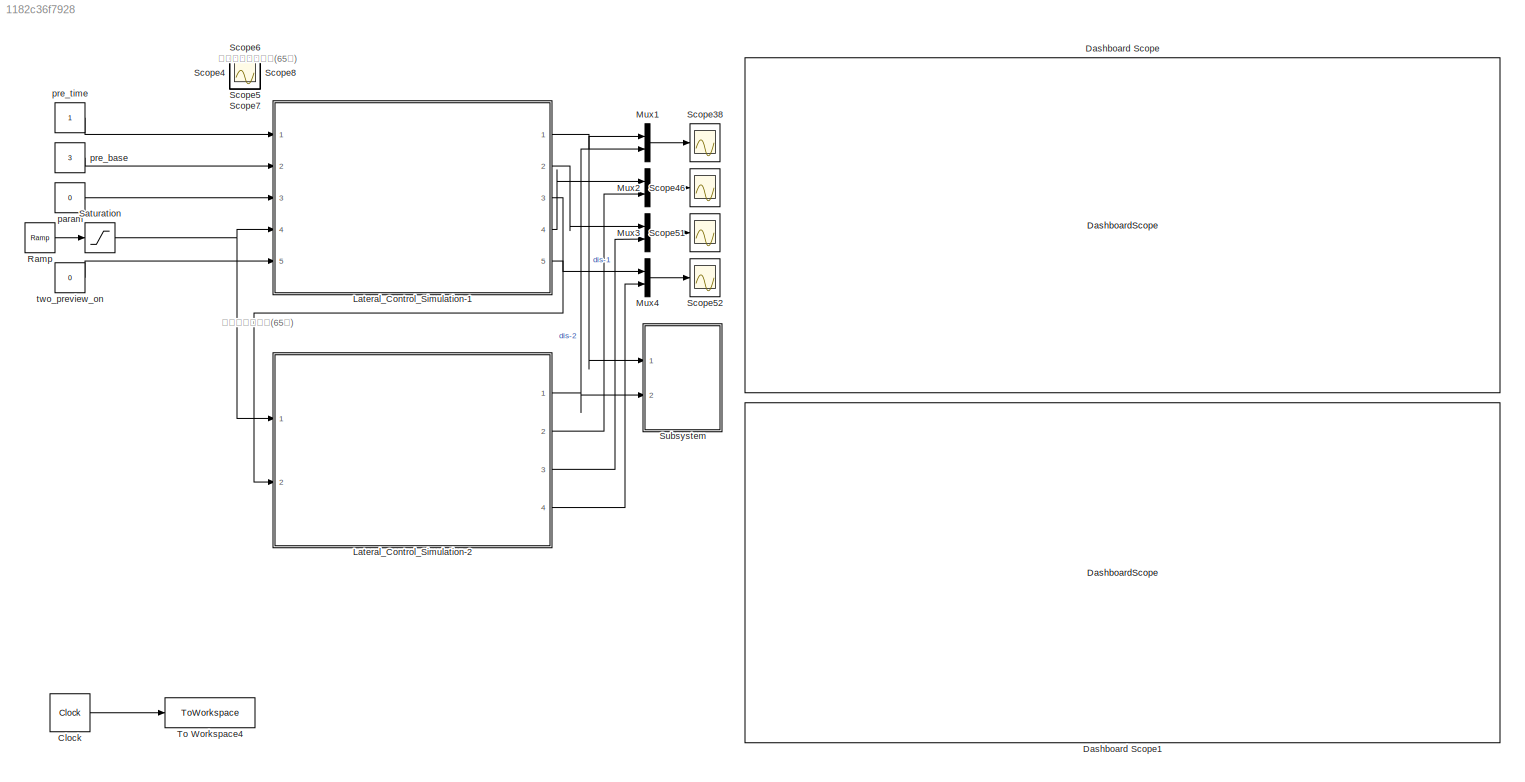
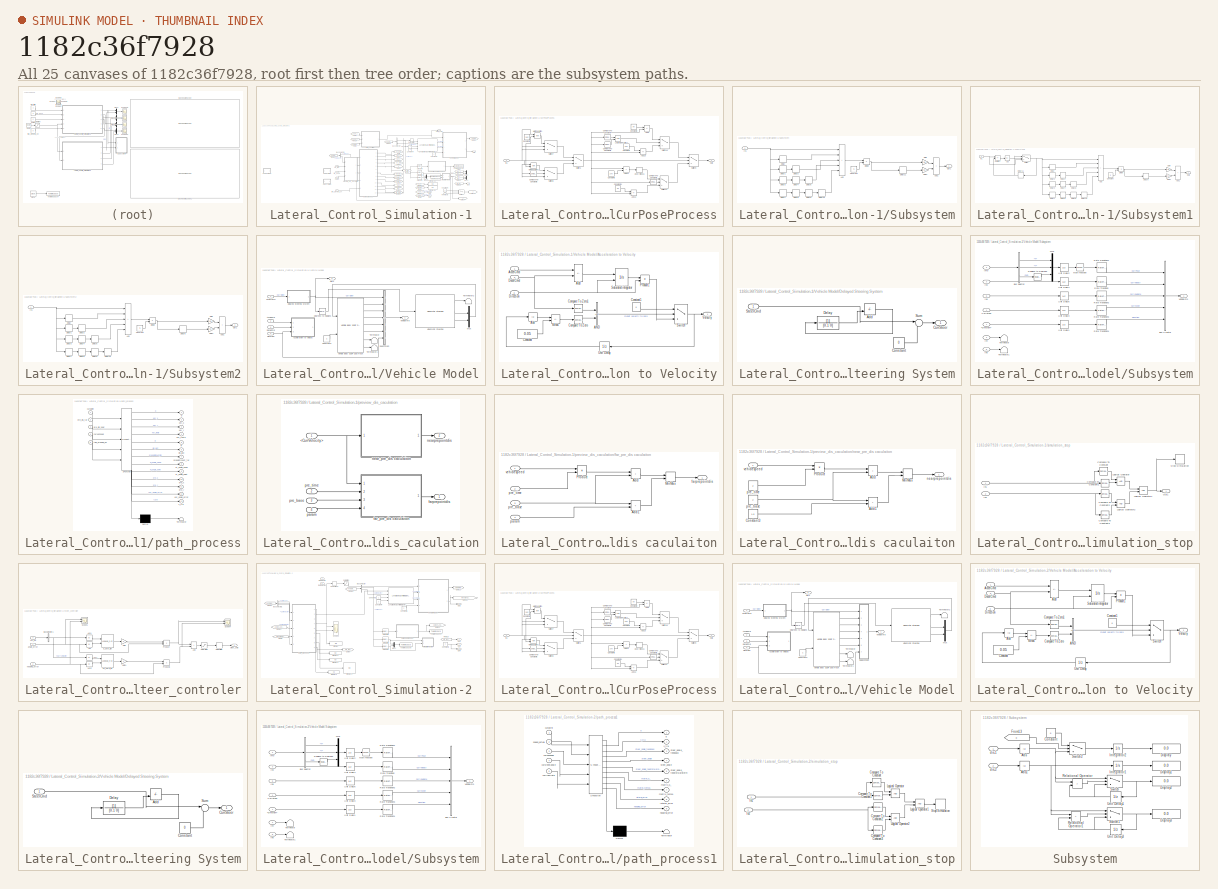
[diagram: thumbnail index - all 25 canvases of the model, root first then tree order]
MODEL slx_1182c36f7928
KIND model
CONFIG AbsTol = auto
CONFIG EnableMultiTasking = off
CONFIG FixedStep = 0.05
CONFIG InitFcn = startPose=[0,0,48]
CONFIG MaxStep = auto
CONFIG MinStep = auto
CONFIG RelTol = 1e-3
CONFIG SampleTimeConstraint = Unconstrained
CONFIG Solver = FixedStepAuto
CONFIG SolverName = FixedStepAuto
CONFIG StartTime = 0.0
CONFIG StopFcn = load('NewBaiYunPathDown6_13.mat')\nn=1;\nx0=0;\ny0=0;\nlng0 = BaiYunEmpty(2,1);\nlat0 = BaiYunEmpty(1,1);\nx1=[];\ny1=[];\nhead=[];\nnn = length(BaiYunEmpty(1,:));\nwhile (n<nn)    \nlng2 = BaiYunEmpty(2,n);\nlat2 = BaiYunEmpty(1,n);\nhead2 = BaiYunEmpty(3,n);\ntemp_x=(lng2-lng0)*111700*cos(lat2/180*pi);\ntemp_y=(lat2-lat0)*111700;    \nx1(n) = x0 + temp_x;\ny1(n) = y0 + temp_y;\nhead(n)=head2;\nn = n+1;\nend\nfigure(...<+79ch>
CONFIG StopTime = 300
BLOCK [Clock] Clock
  DisplayTime = on
BLOCK [DashboardScope] Dashboard Scope
BLOCK [DashboardScope] Dashboard Scope1
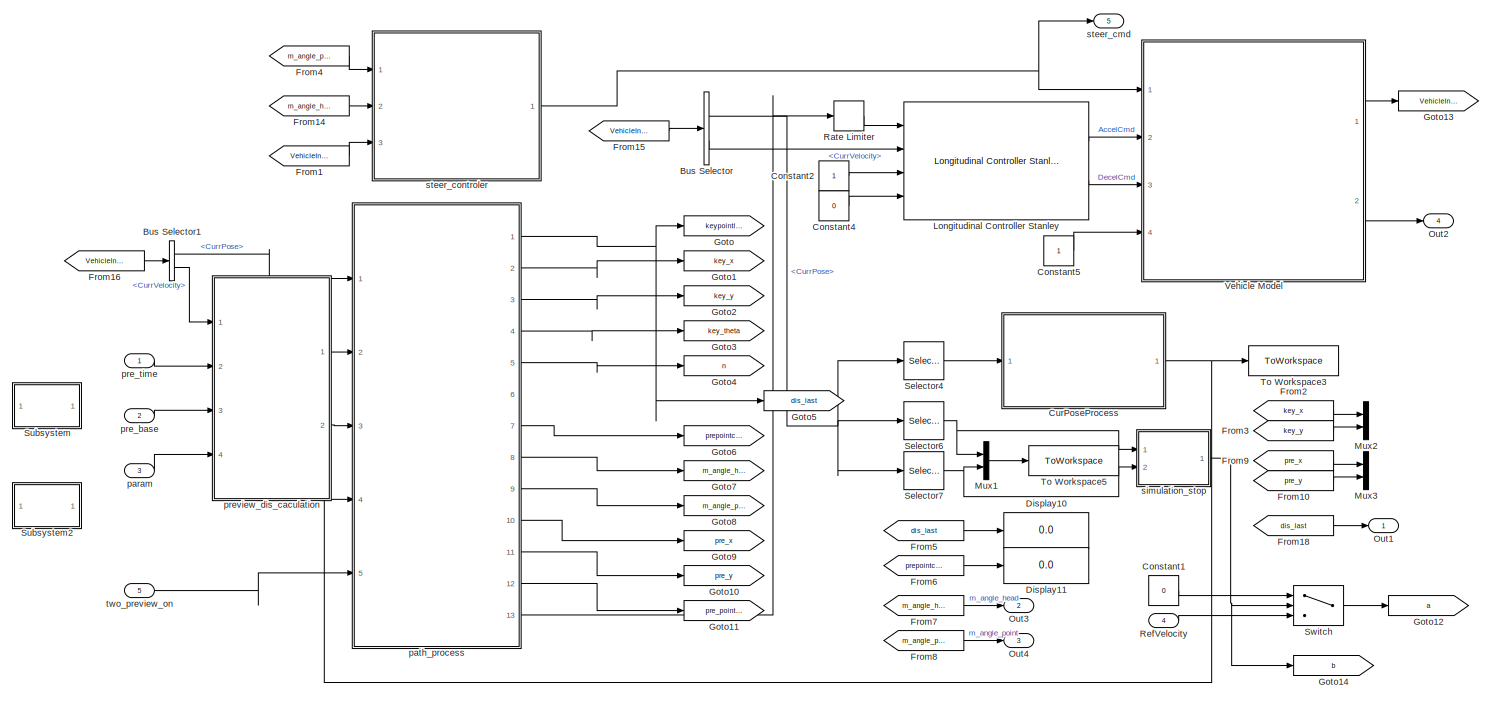
[diagram: Lateral_Control_Simulation-1 - part 1/2, center side, full height]
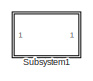
[diagram: Lateral_Control_Simulation-1 - part 2/2, middle left region]
BLOCK [SubSystem] Lateral_Control_Simulation-1
  Ports = [5, 5]
  RequestExecContextInheritance = off
BLOCK [BusSelector] Lateral_Control_Simulation-1/Bus Selector
  OutputSignals = CurrPose,CurrVelocity
  Ports = [1, 2]
BLOCK [BusSelector] Lateral_Control_Simulation-1/Bus Selector1
  OutputSignals = CurrPose,CurrVelocity
  Ports = [1, 2]
BLOCK [Constant] Lateral_Control_Simulation-1/Constant1
  Value = 0
BLOCK [Constant] Lateral_Control_Simulation-1/Constant2
BLOCK [Constant] Lateral_Control_Simulation-1/Constant4
  Value = 0
BLOCK [Constant] Lateral_Control_Simulation-1/Constant5
BLOCK [SubSystem] Lateral_Control_Simulation-1/CurPoseProcess
  Ports = [1, 1]
  RequestExecContextInheritance = off
BLOCK [Sum] Lateral_Control_Simulation-1/CurPoseProcess/Add10
  IconShape = rectangular
  Inputs = +-
  Ports = [2, 1]
BLOCK [Sum] Lateral_Control_Simulation-1/CurPoseProcess/Add11
  IconShape = rectangular
  Ports = [2, 1]
BLOCK [Sum] Lateral_Control_Simulation-1/CurPoseProcess/Add12
  IconShape = rectangular
  Inputs = +-
  Ports = [2, 1]
BLOCK [Sum] Lateral_Control_Simulation-1/CurPoseProcess/Add9
  IconShape = rectangular
  Inputs = +-
  Ports = [2, 1]
BLOCK [Reference] Lateral_Control_Simulation-1/CurPoseProcess/Compare To Constant5  REF=simulink/Logic and Bit
Operations/Compare
To Constant
  Ports = [1, 1]
  SourceBlock = simulink/Logic and Bit\nOperations/Compare\nTo Constant
  SourceProductBaseCode = SL
  SourceType = Compare To Constant
BLOCK [Reference] Lateral_Control_Simulation-1/CurPoseProcess/Compare To Constant6  REF=simulink/Logic and Bit
Operations/Compare
To Constant
  Ports = [1, 1]
  SourceBlock = simulink/Logic and Bit\nOperations/Compare\nTo Constant
  SourceProductBaseCode = SL
  SourceType = Compare To Constant
BLOCK [Reference] Lateral_Control_Simulation-1/CurPoseProcess/Compare To Constant7  REF=simulink/Logic and Bit
Operations/Compare
To Constant
  Ports = [1, 1]
  SourceBlock = simulink/Logic and Bit\nOperations/Compare\nTo Constant
  SourceProductBaseCode = SL
  SourceType = Compare To Constant
BLOCK [Reference] Lateral_Control_Simulation-1/CurPoseProcess/Compare To Constant8  REF=simulink/Logic and Bit
Operations/Compare
To Constant
  Ports = [1, 1]
  SourceBlock = simulink/Logic and Bit\nOperations/Compare\nTo Constant
  SourceProductBaseCode = SL
  SourceType = Compare To Constant
BLOCK [Constant] Lateral_Control_Simulation-1/CurPoseProcess/Constant1
  Value = 360
BLOCK [Constant] Lateral_Control_Simulation-1/CurPoseProcess/Constant11
  Value = 90
BLOCK [Constant] Lateral_Control_Simulation-1/CurPoseProcess/Constant2
  Value = 90
BLOCK [Constant] Lateral_Control_Simulation-1/CurPoseProcess/Constant4
  Value = 450
BLOCK [Constant] Lateral_Control_Simulation-1/CurPoseProcess/Constant5
  Value = 270
BLOCK [Inport] Lateral_Control_Simulation-1/CurPoseProcess/In1
BLOCK [Logic] Lateral_Control_Simulation-1/CurPoseProcess/Logical Operator1
  AllPortsSameDT = off
  OutDataTypeStr = boolean
  Ports = [2, 1]
BLOCK [Math] Lateral_Control_Simulation-1/CurPoseProcess/Math Function
  Operator = rem
  Ports = [2, 1]
BLOCK [Math] Lateral_Control_Simulation-1/CurPoseProcess/Math Function1
  Operator = rem
  Ports = [2, 1]
BLOCK [Outport] Lateral_Control_Simulation-1/CurPoseProcess/Out1
BLOCK [Switch] Lateral_Control_Simulation-1/CurPoseProcess/Switch1
  Criteria = u2 > Threshold
  InputSameDT = off
  SaturateOnIntegerOverflow = off
BLOCK [Switch] Lateral_Control_Simulation-1/CurPoseProcess/Switch10
  Criteria = u2 ~= 0
  InputSameDT = off
  SaturateOnIntegerOverflow = off
  Threshold = 360
BLOCK [Switch] Lateral_Control_Simulation-1/CurPoseProcess/Switch11
  Criteria = u2 ~= 0
  InputSameDT = off
  SaturateOnIntegerOverflow = off
  Threshold = 360
BLOCK [Switch] Lateral_Control_Simulation-1/CurPoseProcess/Switch7
  Criteria = u2 > Threshold
  InputSameDT = off
  SaturateOnIntegerOverflow = off
  Threshold = 360
BLOCK [Switch] Lateral_Control_Simulation-1/CurPoseProcess/Switch8
  Criteria = u2 ~= 0
  InputSameDT = off
  SaturateOnIntegerOverflow = off
  Threshold = 360
BLOCK [Switch] Lateral_Control_Simulation-1/CurPoseProcess/Switch9
  Criteria = u2 > Threshold
  InputSameDT = off
  SaturateOnIntegerOverflow = off
BLOCK [UnaryMinus] Lateral_Control_Simulation-1/CurPoseProcess/Unary Minus1
BLOCK [Display] Lateral_Control_Simulation-1/Display10
  Decimation = 1
  Ports = [1]
BLOCK [Display] Lateral_Control_Simulation-1/Display11
  Decimation = 1
  Ports = [1]
BLOCK [From] Lateral_Control_Simulation-1/From1
  GotoTag = VehicleInfo
BLOCK [From] Lateral_Control_Simulation-1/From10
  GotoTag = pre_y
BLOCK [From] Lateral_Control_Simulation-1/From14
  GotoTag = m_angle_head
BLOCK [From] Lateral_Control_Simulation-1/From15
  GotoTag = VehicleInfo
BLOCK [From] Lateral_Control_Simulation-1/From16
  GotoTag = VehicleInfo
BLOCK [From] Lateral_Control_Simulation-1/From18
  GotoTag = dis_last
BLOCK [From] Lateral_Control_Simulation-1/From2
  GotoTag = key_x
BLOCK [From] Lateral_Control_Simulation-1/From3
  GotoTag = key_y
BLOCK [From] Lateral_Control_Simulation-1/From4
  GotoTag = m_angle_point
BLOCK [From] Lateral_Control_Simulation-1/From5
  GotoTag = dis_last
BLOCK [From] Lateral_Control_Simulation-1/From6
  GotoTag = prepointcount
BLOCK [From] Lateral_Control_Simulation-1/From7
  GotoTag = m_angle_head
BLOCK [From] Lateral_Control_Simulation-1/From8
  GotoTag = m_angle_point
BLOCK [From] Lateral_Control_Simulation-1/From9
  GotoTag = pre_x
BLOCK [Goto] Lateral_Control_Simulation-1/Goto
  GotoTag = keypointlist
  IconDisplay = Signal name
BLOCK [Goto] Lateral_Control_Simulation-1/Goto1
  GotoTag = key_x
BLOCK [Goto] Lateral_Control_Simulation-1/Goto10
  GotoTag = pre_y
BLOCK [Goto] Lateral_Control_Simulation-1/Goto11
  GotoTag = pre_point_direction
BLOCK [Goto] Lateral_Control_Simulation-1/Goto12
  GotoTag = a
  TagVisibility = global
BLOCK [Goto] Lateral_Control_Simulation-1/Goto13
  GotoTag = VehicleInfo
  IconDisplay = Tag and signal name
BLOCK [Goto] Lateral_Control_Simulation-1/Goto14
  GotoTag = b
  TagVisibility = global
BLOCK [Goto] Lateral_Control_Simulation-1/Goto2
  GotoTag = key_y
BLOCK [Goto] Lateral_Control_Simulation-1/Goto3
  GotoTag = key_theta
BLOCK [Goto] Lateral_Control_Simulation-1/Goto4
  GotoTag = n
BLOCK [Goto] Lateral_Control_Simulation-1/Goto5
  GotoTag = dis_last
BLOCK [Goto] Lateral_Control_Simulation-1/Goto6
  GotoTag = prepointcount
BLOCK [Goto] Lateral_Control_Simulation-1/Goto7
  GotoTag = m_angle_head
BLOCK [Goto] Lateral_Control_Simulation-1/Goto8
  GotoTag = m_angle_point
BLOCK [Goto] Lateral_Control_Simulation-1/Goto9
  GotoTag = pre_x
BLOCK [Reference] Lateral_Control_Simulation-1/Longitudinal Controller Stanley  REF=drivingvehiclecontroller/Longitudinal Controller Stanley
  Ports = [4, 2]
  SourceBlock = drivingvehiclecontroller/Longitudinal Controller Stanley
  SourceProductBaseCode = DR
  SourceType = Longitudinal Controller Stanley
BLOCK [Mux] Lateral_Control_Simulation-1/Mux1
  DisplayOption = bar
  Inputs = 2
  Ports = [2, 1]
BLOCK [Mux] Lateral_Control_Simulation-1/Mux2
  DisplayOption = bar
  Inputs = 2
  Ports = [2, 1]
BLOCK [Mux] Lateral_Control_Simulation-1/Mux3
  DisplayOption = bar
  Inputs = 2
  Ports = [2, 1]
BLOCK [Outport] Lateral_Control_Simulation-1/Out1
BLOCK [Outport] Lateral_Control_Simulation-1/Out2
  Port = 4
BLOCK [Outport] Lateral_Control_Simulation-1/Out3
  Port = 2
BLOCK [Outport] Lateral_Control_Simulation-1/Out4
  Port = 3
BLOCK [RateLimiter] Lateral_Control_Simulation-1/Rate Limiter
  SampleTimeMode = inherited
BLOCK [Inport] Lateral_Control_Simulation-1/RefVelocity
  Port = 4
BLOCK [Selector] Lateral_Control_Simulation-1/Selector4
  IndexOptions = Index vector (dialog)
  Indices = [3]
  InputPortWidth = 3
  OutputSizes = 1
  Ports = [1, 1]
BLOCK [Selector] Lateral_Control_Simulation-1/Selector6
  IndexOptions = Index vector (dialog)
  Indices = [1]
  InputPortWidth = 3
  OutputSizes = 1
  Ports = [1, 1]
BLOCK [Selector] Lateral_Control_Simulation-1/Selector7
  IndexOptions = Index vector (dialog)
  Indices = [2]
  InputPortWidth = 3
  OutputSizes = 1
  Ports = [1, 1]
BLOCK [SubSystem] Lateral_Control_Simulation-1/Subsystem
  Ports = [1, 1]
  RequestExecContextInheritance = off
BLOCK [Sum] Lateral_Control_Simulation-1/Subsystem/Add
  IconShape = rectangular
  Inputs = +++++
  Ports = [5, 1]
BLOCK [Sum] Lateral_Control_Simulation-1/Subsystem/Add1
  IconShape = rectangular
  Ports = [2, 1]
BLOCK [Constant] Lateral_Control_Simulation-1/Subsystem/Constant
  Value = 5
BLOCK [Delay] Lateral_Control_Simulation-1/Subsystem/Delay
  DelayLength = 1
  InitialCondition = 0
  InputPortMap = u0
  Ports = [1, 1]
BLOCK [Delay] Lateral_Control_Simulation-1/Subsystem/Delay1
  DelayLength = 1
  InitialCondition = 0
  InputPortMap = u0
  Ports = [1, 1]
BLOCK [Delay] Lateral_Control_Simulation-1/Subsystem/Delay10
  DelayLength = 1
  InitialCondition = 0
  InputPortMap = u0
  Ports = [1, 1]
BLOCK [Delay] Lateral_Control_Simulation-1/Subsystem/Delay11
  DelayLength = 1
  InitialCondition = 0
  InputPortMap = u0
  Ports = [1, 1]
BLOCK [Delay] Lateral_Control_Simulation-1/Subsystem/Delay2
  DelayLength = 1
  InitialCondition = 0
  InputPortMap = u0
  Ports = [1, 1]
BLOCK [Delay] Lateral_Control_Simulation-1/Subsystem/Delay3
  DelayLength = 1
  InitialCondition = 0
  InputPortMap = u0
  Ports = [1, 1]
BLOCK [Delay] Lateral_Control_Simulation-1/Subsystem/Delay4
  DelayLength = 1
  InitialCondition = 0
  InputPortMap = u0
  Ports = [1, 1]
BLOCK [Delay] Lateral_Control_Simulation-1/Subsystem/Delay5
  DelayLength = 1
  InitialCondition = 0
  InputPortMap = u0
  Ports = [1, 1]
BLOCK [Delay] Lateral_Control_Simulation-1/Subsystem/Delay7
  DelayLength = 1
  InitialCondition = 0
  InputPortMap = u0
  Ports = [1, 1]
BLOCK [Delay] Lateral_Control_Simulation-1/Subsystem/Delay8
  DelayLength = 1
  InitialCondition = 0
  InputPortMap = u0
  Ports = [1, 1]
BLOCK [Delay] Lateral_Control_Simulation-1/Subsystem/Delay9
  DelayLength = 1
  InitialCondition = 0
  InputPortMap = u0
  Ports = [1, 1]
BLOCK [Product] Lateral_Control_Simulation-1/Subsystem/Divide
  Inputs = */
  Ports = [2, 1]
BLOCK [Gain] Lateral_Control_Simulation-1/Subsystem/Gain
  Gain = 0.8
BLOCK [Gain] Lateral_Control_Simulation-1/Subsystem/Gain1
  Gain = 0.2
BLOCK [Inport] Lateral_Control_Simulation-1/Subsystem/In1
BLOCK [Outport] Lateral_Control_Simulation-1/Subsystem/Out1
BLOCK [SubSystem] Lateral_Control_Simulation-1/Subsystem1
  Ports = [1, 1]
  RequestExecContextInheritance = off
BLOCK [Abs] Lateral_Control_Simulation-1/Subsystem1/Abs
  SaturateOnIntegerOverflow = off
BLOCK [Sum] Lateral_Control_Simulation-1/Subsystem1/Add
  IconShape = rectangular
  Inputs = +++++
  Ports = [5, 1]
BLOCK [Sum] Lateral_Control_Simulation-1/Subsystem1/Add1
  IconShape = rectangular
  Ports = [2, 1]
BLOCK [Constant] Lateral_Control_Simulation-1/Subsystem1/Constant
  Value = 5
BLOCK [Delay] Lateral_Control_Simulation-1/Subsystem1/Delay
  DelayLength = 1
  InitialCondition = 0
  InputPortMap = u0
  Ports = [1, 1]
BLOCK [Delay] Lateral_Control_Simulation-1/Subsystem1/Delay1
  DelayLength = 1
  InitialCondition = 0
  InputPortMap = u0
  Ports = [1, 1]
BLOCK [Delay] Lateral_Control_Simulation-1/Subsystem1/Delay10
  DelayLength = 1
  InitialCondition = 0
  InputPortMap = u0
  Ports = [1, 1]
BLOCK [Delay] Lateral_Control_Simulation-1/Subsystem1/Delay11
  DelayLength = 1
  InitialCondition = 0
  InputPortMap = u0
  Ports = [1, 1]
BLOCK [Delay] Lateral_Control_Simulation-1/Subsystem1/Delay2
  DelayLength = 1
  InitialCondition = 0
  InputPortMap = u0
  Ports = [1, 1]
BLOCK [Delay] Lateral_Control_Simulation-1/Subsystem1/Delay3
  DelayLength = 1
  InitialCondition = 0
  InputPortMap = u0
  Ports = [1, 1]
BLOCK [Delay] Lateral_Control_Simulation-1/Subsystem1/Delay4
  DelayLength = 1
  InitialCondition = 0
  InputPortMap = u0
  Ports = [1, 1]
BLOCK [Delay] Lateral_Control_Simulation-1/Subsystem1/Delay5
  DelayLength = 1
  InitialCondition = 0
  InputPortMap = u0
  Ports = [1, 1]
BLOCK [Delay] Lateral_Control_Simulation-1/Subsystem1/Delay6
  DelayLength = 1
  InitialCondition = 0
  InputPortMap = u0
  Ports = [1, 1]
BLOCK [Delay] Lateral_Control_Simulation-1/Subsystem1/Delay7
  DelayLength = 1
  InitialCondition = 0
  InputPortMap = u0
  Ports = [1, 1]
BLOCK [Delay] Lateral_Control_Simulation-1/Subsystem1/Delay8
  DelayLength = 1
  InitialCondition = 0
  InputPortMap = u0
  Ports = [1, 1]
BLOCK [Delay] Lateral_Control_Simulation-1/Subsystem1/Delay9
  DelayLength = 1
  InitialCondition = 0
  InputPortMap = u0
  Ports = [1, 1]
BLOCK [Product] Lateral_Control_Simulation-1/Subsystem1/Divide
  Inputs = */
  Ports = [2, 1]
BLOCK [Gain] Lateral_Control_Simulation-1/Subsystem1/Gain
  Gain = 0.8
BLOCK [Gain] Lateral_Control_Simulation-1/Subsystem1/Gain1
  Gain = 0.2
BLOCK [Inport] Lateral_Control_Simulation-1/Subsystem1/In1
BLOCK [Outport] Lateral_Control_Simulation-1/Subsystem1/Out1
BLOCK [Sum] Lateral_Control_Simulation-1/Subsystem1/Subtract
  IconShape = rectangular
  Inputs = +-
  Ports = [2, 1]
BLOCK [Switch] Lateral_Control_Simulation-1/Subsystem1/Switch
  Criteria = u2 > Threshold
  InputSameDT = off
  SaturateOnIntegerOverflow = off
  Threshold = 180
BLOCK [SubSystem] Lateral_Control_Simulation-1/Subsystem2
  Ports = [1, 1]
  RequestExecContextInheritance = off
BLOCK [Sum] Lateral_Control_Simulation-1/Subsystem2/Add
  IconShape = rectangular
  Inputs = +++++
  Ports = [5, 1]
BLOCK [Sum] Lateral_Control_Simulation-1/Subsystem2/Add1
  IconShape = rectangular
  Ports = [2, 1]
BLOCK [Constant] Lateral_Control_Simulation-1/Subsystem2/Constant
  Value = 5
BLOCK [Delay] Lateral_Control_Simulation-1/Subsystem2/Delay
  DelayLength = 1
  InitialCondition = 0
  InputPortMap = u0
  Ports = [1, 1]
BLOCK [Delay] Lateral_Control_Simulation-1/Subsystem2/Delay1
  DelayLength = 1
  InitialCondition = 0
  InputPortMap = u0
  Ports = [1, 1]
BLOCK [Delay] Lateral_Control_Simulation-1/Subsystem2/Delay10
  DelayLength = 1
  InitialCondition = 0
  InputPortMap = u0
  Ports = [1, 1]
BLOCK [Delay] Lateral_Control_Simulation-1/Subsystem2/Delay2
  DelayLength = 1
  InitialCondition = 0
  InputPortMap = u0
  Ports = [1, 1]
BLOCK [Delay] Lateral_Control_Simulation-1/Subsystem2/Delay3
  DelayLength = 1
  InitialCondition = 0
  InputPortMap = u0
  Ports = [1, 1]
BLOCK [Delay] Lateral_Control_Simulation-1/Subsystem2/Delay4
  DelayLength = 1
  InitialCondition = 0
  InputPortMap = u0
  Ports = [1, 1]
BLOCK [Delay] Lateral_Control_Simulation-1/Subsystem2/Delay5
  DelayLength = 1
  InitialCondition = 0
  InputPortMap = u0
  Ports = [1, 1]
BLOCK [Delay] Lateral_Control_Simulation-1/Subsystem2/Delay6
  DelayLength = 1
  InitialCondition = 0
  InputPortMap = u0
  Ports = [1, 1]
BLOCK [Delay] Lateral_Control_Simulation-1/Subsystem2/Delay7
  DelayLength = 1
  InitialCondition = 0
  InputPortMap = u0
  Ports = [1, 1]
BLOCK [Delay] Lateral_Control_Simulation-1/Subsystem2/Delay8
  DelayLength = 1
  InitialCondition = 0
  InputPortMap = u0
  Ports = [1, 1]
BLOCK [Delay] Lateral_Control_Simulation-1/Subsystem2/Delay9
  DelayLength = 1
  InitialCondition = 0
  InputPortMap = u0
  Ports = [1, 1]
BLOCK [Product] Lateral_Control_Simulation-1/Subsystem2/Divide
  Inputs = */
  Ports = [2, 1]
BLOCK [Gain] Lateral_Control_Simulation-1/Subsystem2/Gain
  Gain = 0.8
BLOCK [Gain] Lateral_Control_Simulation-1/Subsystem2/Gain1
  Gain = 0.2
BLOCK [Inport] Lateral_Control_Simulation-1/Subsystem2/In1
BLOCK [Outport] Lateral_Control_Simulation-1/Subsystem2/Out1
BLOCK [Switch] Lateral_Control_Simulation-1/Switch
  Criteria = u2 ~= 0
  InputSameDT = off
  SaturateOnIntegerOverflow = off
BLOCK [ToWorkspace] Lateral_Control_Simulation-1/To Workspace3
  FixptAsFi = on
  MaxDataPoints = inf
  Ports = [1]
  SampleTime = -1
  Save2DSignal = 2-D array (concatenate along first dimension)
  VariableName = v
BLOCK [ToWorkspace] Lateral_Control_Simulation-1/To Workspace5
  FixptAsFi = on
  MaxDataPoints = inf
  Ports = [1]
  SampleTime = -1
  Save2DSignal = 2-D array (concatenate along first dimension)
  VariableName = v2
BLOCK [SubSystem] Lateral_Control_Simulation-1/Vehicle Model
  Ports = [4, 2]
  RequestExecContextInheritance = off
BLOCK [Inport] Lateral_Control_Simulation-1/Vehicle Model/AccelCmd
  Port = 2
BLOCK [SubSystem] Lateral_Control_Simulation-1/Vehicle Model/Acceleration to Velocity
  Ports = [3, 1]
  RequestExecContextInheritance = off
  TreatAsAtomicUnit = on
BLOCK [Logic] Lateral_Control_Simulation-1/Vehicle Model/Acceleration to Velocity/AND
  AllPortsSameDT = off
  IconShape = distinctive
  OutDataTypeStr = boolean
  Ports = [2, 1]
BLOCK [Abs] Lateral_Control_Simulation-1/Vehicle Model/Acceleration to Velocity/Abs
  SaturateOnIntegerOverflow = off
BLOCK [Inport] Lateral_Control_Simulation-1/Vehicle Model/Acceleration to Velocity/AccelCmd
  PortDimensions = [1 1]
BLOCK [Sum] Lateral_Control_Simulation-1/Vehicle Model/Acceleration to Velocity/Add
  IconShape = rectangular
  Inputs = +-
  Ports = [2, 1]
BLOCK [Reference] Lateral_Control_Simulation-1/Vehicle Model/Acceleration to Velocity/Compare To Zero  REF=simulink/Logic and Bit
Operations/Compare
To Zero
  Ports = [1, 1]
  SourceBlock = simulink/Logic and Bit\nOperations/Compare\nTo Zero
  SourceProductBaseCode = SL
  SourceType = Compare To Zero
BLOCK [Reference] Lateral_Control_Simulation-1/Vehicle Model/Acceleration to Velocity/Compare To Zero1  REF=simulink/Logic and Bit
Operations/Compare
To Zero
  Ports = [1, 1]
  SourceBlock = simulink/Logic and Bit\nOperations/Compare\nTo Zero
  SourceProductBaseCode = SL
  SourceType = Compare To Zero
BLOCK [Constant] Lateral_Control_Simulation-1/Vehicle Model/Acceleration to Velocity/Constant
  Value = 0.05
BLOCK [Constant] Lateral_Control_Simulation-1/Vehicle Model/Acceleration to Velocity/Constant1
  Value = 0
BLOCK [Inport] Lateral_Control_Simulation-1/Vehicle Model/Acceleration to Velocity/DecelCmd
  Port = 2
  PortDimensions = [1 1]
BLOCK [Inport] Lateral_Control_Simulation-1/Vehicle Model/Acceleration to Velocity/Direction
  Port = 3
BLOCK [Sum] Lateral_Control_Simulation-1/Vehicle Model/Acceleration to Velocity/Minus
  IconShape = rectangular
  Inputs = +-
  Ports = [2, 1]
BLOCK [Product] Lateral_Control_Simulation-1/Vehicle Model/Acceleration to Velocity/Product1
  Ports = [2, 1]
BLOCK [Integrator] Lateral_Control_Simulation-1/Vehicle Model/Acceleration to Velocity/Saturated integrator
  AbsoluteTolerance = 1e-3
  ExternalReset = either
  LimitOutput = on
  LowerSaturationLimit = 0
  Ports = [2, 1]
  ZeroCross = off
BLOCK [Switch] Lateral_Control_Simulation-1/Vehicle Model/Acceleration to Velocity/Switch
  Criteria = u2 > Threshold
  InputSameDT = off
  SaturateOnIntegerOverflow = off
BLOCK [UnitDelay] Lateral_Control_Simulation-1/Vehicle Model/Acceleration to Velocity/Unit Delay
  HasFrameUpgradeWarning = on
  SampleTime = -1
BLOCK [Outport] Lateral_Control_Simulation-1/Vehicle Model/Acceleration to Velocity/Velocity
  VectorParamsAs1DForOutWhenUnconnected = off
BLOCK [Constant] Lateral_Control_Simulation-1/Vehicle Model/Constant5
  SampleTime = -1
  Value = 4
BLOCK [Inport] Lateral_Control_Simulation-1/Vehicle Model/DecelCmd
  Port = 3
BLOCK [Reference] Lateral_Control_Simulation-1/Vehicle Model/Degrees to Radians  REF=simulink_extras/Transformations/Degrees to
Radians
  Ports = [1, 1]
  SourceBlock = simulink_extras/Transformations/Degrees to\nRadians
  SourceProductBaseCode = SL
  SourceType = DegreesToRadians
BLOCK [SubSystem] Lateral_Control_Simulation-1/Vehicle Model/Delayed Steering System
  Ports = [1, 1]
  RequestExecContextInheritance = off
BLOCK [Sum] Lateral_Control_Simulation-1/Vehicle Model/Delayed Steering System/Add
  IconShape = rectangular
  Inputs = +-
  Ports = [2, 1]
BLOCK [Constant] Lateral_Control_Simulation-1/Vehicle Model/Delayed Steering System/Constant
  Value = 0
BLOCK [Outport] Lateral_Control_Simulation-1/Vehicle Model/Delayed Steering System/CurrSteer
  VectorParamsAs1DForOutWhenUnconnected = off
BLOCK [TransferFcn] Lateral_Control_Simulation-1/Vehicle Model/Delayed Steering System/Delay
  Denominator = [0.1 0]
BLOCK [Inport] Lateral_Control_Simulation-1/Vehicle Model/Delayed Steering System/SteerCmd
BLOCK [Sum] Lateral_Control_Simulation-1/Vehicle Model/Delayed Steering System/Sum
  Inputs = |++
  Ports = [2, 1]
BLOCK [Inport] Lateral_Control_Simulation-1/Vehicle Model/Direction
  Port = 4
BLOCK [Reference] Lateral_Control_Simulation-1/Vehicle Model/Kinematic Steering  REF=vehdynlibsteering/Kinematic Steering
  Ports = [1, 3]
  SourceBlock = vehdynlibsteering/Kinematic Steering
  SourceProductBaseCode = VE
  SourceType = Kinematic Steering
BLOCK [Mux] Lateral_Control_Simulation-1/Vehicle Model/Mux
  DisplayOption = bar
  Inputs = 2
  Ports = [2, 1]
BLOCK [Outport] Lateral_Control_Simulation-1/Vehicle Model/Out1
  Port = 2
BLOCK [Inport] Lateral_Control_Simulation-1/Vehicle Model/SteerCmd
BLOCK [SubSystem] Lateral_Control_Simulation-1/Vehicle Model/Subsystem
  Ports = [7, 1]
  RequestExecContextInheritance = off
BLOCK [Inport] Lateral_Control_Simulation-1/Vehicle Model/Subsystem/<Direction>
  Port = 7
BLOCK [BusCreator] Lateral_Control_Simulation-1/Vehicle Model/Subsystem/Bus Creator
  DisplayOption = bar
  InheritFromInputs = on
  Inputs = 5
  Ports = [5, 1]
BLOCK [BusSelector] Lateral_Control_Simulation-1/Vehicle Model/Subsystem/Bus Selector
  OutputSignals = InertFrm.Geom.Disp.X,InertFrm.Geom.Disp.Y,InertFrm.Cg.Ang.psi
  Ports = [1, 3]
BLOCK [Inport] Lateral_Control_Simulation-1/Vehicle Model/Subsystem/CurrSteer
BLOCK [Inport] Lateral_Control_Simulation-1/Vehicle Model/Subsystem/In3
  Port = 3
BLOCK [Inport] Lateral_Control_Simulation-1/Vehicle Model/Subsystem/In4
  Port = 4
BLOCK [Inport] Lateral_Control_Simulation-1/Vehicle Model/Subsystem/In5
  Port = 5
BLOCK [Inport] Lateral_Control_Simulation-1/Vehicle Model/Subsystem/In6
  Port = 6
BLOCK [Inport] Lateral_Control_Simulation-1/Vehicle Model/Subsystem/Info
  Port = 2
BLOCK [Math] Lateral_Control_Simulation-1/Vehicle Model/Subsystem/Math Function
  Operator = transpose
  Ports = [1, 1]
  SignedPower = on
BLOCK [Mux] Lateral_Control_Simulation-1/Vehicle Model/Subsystem/Mux
  DisplayOption = bar
  Inputs = 3
  Ports = [3, 1]
BLOCK [Reference] Lateral_Control_Simulation-1/Vehicle Model/Subsystem/Radians to Degrees  REF=simulink_extras/Transformations/Radians
to Degrees
  Ports = [1, 1]
  SourceBlock = simulink_extras/Transformations/Radians\nto Degrees
  SourceProductBaseCode = SL
  SourceType = RadiansToDegrees
BLOCK [RateTransition] Lateral_Control_Simulation-1/Vehicle Model/Subsystem/Rate Transition
  OutPortSampleTime = 0.05
BLOCK [RateTransition] Lateral_Control_Simulation-1/Vehicle Model/Subsystem/Rate Transition1
  InitialCondition = startPose
  OutPortSampleTime = 0.05
BLOCK [RateTransition] Lateral_Control_Simulation-1/Vehicle Model/Subsystem/Rate Transition2
  OutPortSampleTime = 0.05
BLOCK [RateTransition] Lateral_Control_Simulation-1/Vehicle Model/Subsystem/Rate Transition3
  OutPortSampleTime = 0.05
BLOCK [RateTransition] Lateral_Control_Simulation-1/Vehicle Model/Subsystem/Rate Transition4
  InitialCondition = 1
  OutPortSampleTime = 0.05
BLOCK [Terminator] Lateral_Control_Simulation-1/Vehicle Model/Subsystem/Terminator
BLOCK [Terminator] Lateral_Control_Simulation-1/Vehicle Model/Subsystem/Terminator1
BLOCK [UnitDelay] Lateral_Control_Simulation-1/Vehicle Model/Subsystem/Unit Delay1
  HasFrameUpgradeWarning = on
  InitialCondition = 1
  SampleTime = -1
BLOCK [UnitDelay] Lateral_Control_Simulation-1/Vehicle Model/Subsystem/Unit Delay2
  HasFrameUpgradeWarning = on
  InitialCondition = startPose
  SampleTime = -1
BLOCK [UnitDelay] Lateral_Control_Simulation-1/Vehicle Model/Subsystem/Unit Delay3
  HasFrameUpgradeWarning = on
  SampleTime = -1
BLOCK [UnitDelay] Lateral_Control_Simulation-1/Vehicle Model/Subsystem/Unit Delay4
  HasFrameUpgradeWarning = on
  SampleTime = -1
BLOCK [UnitDelay] Lateral_Control_Simulation-1/Vehicle Model/Subsystem/Unit Delay5
  HasFrameUpgradeWarning = on
  SampleTime = -1
BLOCK [Outport] Lateral_Control_Simulation-1/Vehicle Model/Subsystem/VehicleInfo
  VectorParamsAs1DForOutWhenUnconnected = off
BLOCK [Terminator] Lateral_Control_Simulation-1/Vehicle Model/Terminator
BLOCK [Terminator] Lateral_Control_Simulation-1/Vehicle Model/Terminator1
BLOCK [Terminator] Lateral_Control_Simulation-1/Vehicle Model/Terminator2
BLOCK [Reference] Lateral_Control_Simulation-1/Vehicle Model/Vehicle Body 3DOF Dual Track  REF=autolibshared/Vehicle Body 3DOF Single Track
  Ports = [2, 7]
  SourceBlock = autolibshared/Vehicle Body 3DOF Single Track
  SourceProductBaseCode = PW,MT,VE,VP
  SourceType = Vehicle Body 3DOF Lateral
BLOCK [Outport] Lateral_Control_Simulation-1/Vehicle Model/VehicleInfo
  VectorParamsAs1DForOutWhenUnconnected = off
BLOCK [Inport] Lateral_Control_Simulation-1/param
  Port = 3
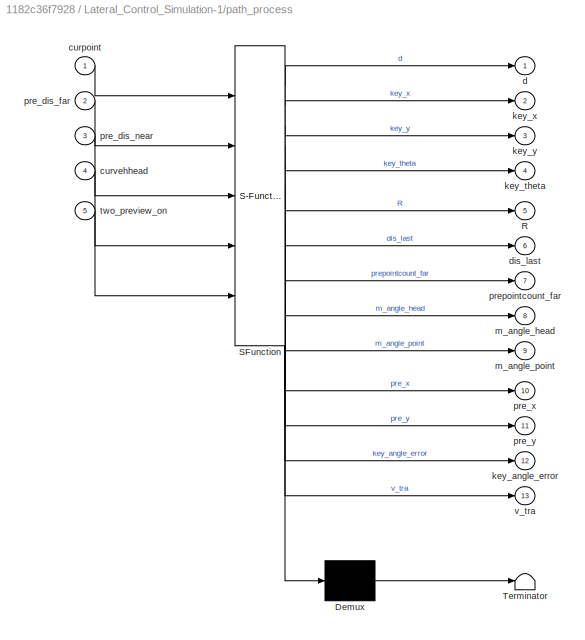
BLOCK [SubSystem] Lateral_Control_Simulation-1/path_process
  ErrorFcn = Stateflow.Translate.translate
  PermitHierarchicalResolution = ExplicitOnly
  Ports = [5, 13]
  RequestExecContextInheritance = off
  SFBlockType = MATLAB Function
  TreatAsAtomicUnit = on
  VariantControl = (default)
BLOCK [Demux] Lateral_Control_Simulation-1/path_process/ Demux 
  Outputs = 1
  Ports = [1, 1]
BLOCK [S-Function] Lateral_Control_Simulation-1/path_process/ SFunction 
  EnableBusSupport = on
  FunctionName = sf_sfun
  PortCounts = [5 14]
  Ports = [5, 14]
  SFcnIsStateOwnerBlock = off
  SFunctionDeploymentMode = off
  Tag = Stateflow S-Function 2
BLOCK [Terminator] Lateral_Control_Simulation-1/path_process/ Terminator 
BLOCK [Outport] Lateral_Control_Simulation-1/path_process/R
  Port = 5
BLOCK [Inport] Lateral_Control_Simulation-1/path_process/curpoint
BLOCK [Inport] Lateral_Control_Simulation-1/path_process/curvehhead
  Port = 4
BLOCK [Outport] Lateral_Control_Simulation-1/path_process/d
BLOCK [Outport] Lateral_Control_Simulation-1/path_process/dis_last
  Port = 6
BLOCK [Outport] Lateral_Control_Simulation-1/path_process/key_angle_error
  Port = 12
BLOCK [Outport] Lateral_Control_Simulation-1/path_process/key_theta
  Port = 4
BLOCK [Outport] Lateral_Control_Simulation-1/path_process/key_x
  Port = 2
BLOCK [Outport] Lateral_Control_Simulation-1/path_process/key_y
  Port = 3
BLOCK [Outport] Lateral_Control_Simulation-1/path_process/m_angle_head
  Port = 8
BLOCK [Outport] Lateral_Control_Simulation-1/path_process/m_angle_point
  Port = 9
BLOCK [Inport] Lateral_Control_Simulation-1/path_process/pre_dis_far
  Port = 2
BLOCK [Inport] Lateral_Control_Simulation-1/path_process/pre_dis_near
  Port = 3
BLOCK [Outport] Lateral_Control_Simulation-1/path_process/pre_x
  Port = 10
BLOCK [Outport] Lateral_Control_Simulation-1/path_process/pre_y
  Port = 11
BLOCK [Outport] Lateral_Control_Simulation-1/path_process/prepointcount_far
  Port = 7
BLOCK [Inport] Lateral_Control_Simulation-1/path_process/two_preview_on
  Port = 5
BLOCK [Outport] Lateral_Control_Simulation-1/path_process/v_tra
  Port = 13
BLOCK [Inport] Lateral_Control_Simulation-1/pre_base
  Port = 2
BLOCK [Inport] Lateral_Control_Simulation-1/pre_time
BLOCK [SubSystem] Lateral_Control_Simulation-1/preview_dis_caculation
  Ports = [4, 2]
  RequestExecContextInheritance = off
BLOCK [Inport] Lateral_Control_Simulation-1/preview_dis_caculation/<CurrVelocity>
BLOCK [SubSystem] Lateral_Control_Simulation-1/preview_dis_caculation/far_pre_dis caculaiton
  Ports = [4, 1]
  RequestExecContextInheritance = off
BLOCK [Sum] Lateral_Control_Simulation-1/preview_dis_caculation/far_pre_dis caculaiton/Add
  IconShape = rectangular
  Ports = [2, 1]
BLOCK [Sum] Lateral_Control_Simulation-1/preview_dis_caculation/far_pre_dis caculaiton/Add1
  IconShape = rectangular
  Ports = [2, 1]
BLOCK [MinMax] Lateral_Control_Simulation-1/preview_dis_caculation/far_pre_dis caculaiton/MinMax
  Function = max
  Inputs = 2
  Ports = [2, 1]
BLOCK [Product] Lateral_Control_Simulation-1/preview_dis_caculation/far_pre_dis caculaiton/Product
  Ports = [2, 1]
BLOCK [Outport] Lateral_Control_Simulation-1/preview_dis_caculation/far_pre_dis caculaiton/farprepointdis
BLOCK [Inport] Lateral_Control_Simulation-1/preview_dis_caculation/far_pre_dis caculaiton/param
  Port = 4
BLOCK [Inport] Lateral_Control_Simulation-1/preview_dis_caculation/far_pre_dis caculaiton/pre_base
  Port = 3
BLOCK [Inport] Lateral_Control_Simulation-1/preview_dis_caculation/far_pre_dis caculaiton/pre_time
  Port = 2
BLOCK [Inport] Lateral_Control_Simulation-1/preview_dis_caculation/far_pre_dis caculaiton/vehiclespeed
BLOCK [Outport] Lateral_Control_Simulation-1/preview_dis_caculation/farprepointdis
BLOCK [SubSystem] Lateral_Control_Simulation-1/preview_dis_caculation/near_pre_dis caculaiton
  Ports = [1, 1]
  RequestExecContextInheritance = off
BLOCK [Sum] Lateral_Control_Simulation-1/preview_dis_caculation/near_pre_dis caculaiton/Add
  IconShape = rectangular
  Ports = [2, 1]
BLOCK [Sum] Lateral_Control_Simulation-1/preview_dis_caculation/near_pre_dis caculaiton/Add1
  IconShape = rectangular
  Ports = [2, 1]
BLOCK [Constant] Lateral_Control_Simulation-1/preview_dis_caculation/near_pre_dis caculaiton/Constant3
  OutDataTypeStr = single
  Value = 1.5
BLOCK [MinMax] Lateral_Control_Simulation-1/preview_dis_caculation/near_pre_dis caculaiton/MinMax
  Function = max
  Inputs = 2
  Ports = [2, 1]
BLOCK [Product] Lateral_Control_Simulation-1/preview_dis_caculation/near_pre_dis caculaiton/Product
  Ports = [2, 1]
BLOCK [Outport] Lateral_Control_Simulation-1/preview_dis_caculation/near_pre_dis caculaiton/nearprepointdis
BLOCK [Constant] Lateral_Control_Simulation-1/preview_dis_caculation/near_pre_dis caculaiton/pre_base
  OutDataTypeStr = single
  Value = 2
BLOCK [Constant] Lateral_Control_Simulation-1/preview_dis_caculation/near_pre_dis caculaiton/pre_time
  OutDataTypeStr = single
  Value = 2
BLOCK [Inport] Lateral_Control_Simulation-1/preview_dis_caculation/near_pre_dis caculaiton/vehiclespeed
BLOCK [Outport] Lateral_Control_Simulation-1/preview_dis_caculation/nearprepointdis
  Port = 2
BLOCK [Inport] Lateral_Control_Simulation-1/preview_dis_caculation/param
  Port = 4
BLOCK [Inport] Lateral_Control_Simulation-1/preview_dis_caculation/pre_base
  Port = 3
BLOCK [Inport] Lateral_Control_Simulation-1/preview_dis_caculation/pre_time
  Port = 2
BLOCK [SubSystem] Lateral_Control_Simulation-1/simulation_stop
  Ports = [2, 1]
  RequestExecContextInheritance = off
BLOCK [Reference] Lateral_Control_Simulation-1/simulation_stop/Compare To Constant  REF=simulink/Logic and Bit
Operations/Compare
To Constant
  Ports = [1, 1]
  SourceBlock = simulink/Logic and Bit\nOperations/Compare\nTo Constant
  SourceProductBaseCode = SL
  SourceType = Compare To Constant
BLOCK [Reference] Lateral_Control_Simulation-1/simulation_stop/Compare To Constant1  REF=simulink/Logic and Bit
Operations/Compare
To Constant
  Ports = [1, 1]
  SourceBlock = simulink/Logic and Bit\nOperations/Compare\nTo Constant
  SourceProductBaseCode = SL
  SourceType = Compare To Constant
BLOCK [Reference] Lateral_Control_Simulation-1/simulation_stop/Compare To Constant2  REF=simulink/Logic and Bit
Operations/Compare
To Constant
  Ports = [1, 1]
  SourceBlock = simulink/Logic and Bit\nOperations/Compare\nTo Constant
  SourceProductBaseCode = SL
  SourceType = Compare To Constant
BLOCK [Reference] Lateral_Control_Simulation-1/simulation_stop/Compare To Constant3  REF=simulink/Logic and Bit
Operations/Compare
To Constant
  Ports = [1, 1]
  SourceBlock = simulink/Logic and Bit\nOperations/Compare\nTo Constant
  SourceProductBaseCode = SL
  SourceType = Compare To Constant
BLOCK [Inport] Lateral_Control_Simulation-1/simulation_stop/In1
BLOCK [Inport] Lateral_Control_Simulation-1/simulation_stop/In2
  Port = 2
BLOCK [Logic] Lateral_Control_Simulation-1/simulation_stop/Logical Operator
  AllPortsSameDT = off
  OutDataTypeStr = boolean
  Ports = [2, 1]
BLOCK [Logic] Lateral_Control_Simulation-1/simulation_stop/Logical Operator1
  AllPortsSameDT = off
  OutDataTypeStr = boolean
  Ports = [2, 1]
BLOCK [Logic] Lateral_Control_Simulation-1/simulation_stop/Logical Operator2
  AllPortsSameDT = off
  OutDataTypeStr = boolean
  Ports = [2, 1]
BLOCK [Outport] Lateral_Control_Simulation-1/simulation_stop/Out1
BLOCK [Stop] Lateral_Control_Simulation-1/simulation_stop/Stop Simulation
BLOCK [Outport] Lateral_Control_Simulation-1/steer_cmd
  Port = 5
BLOCK [SubSystem] Lateral_Control_Simulation-1/steer_controler
  Ports = [3, 1]
  RequestExecContextInheritance = off
BLOCK [Abs] Lateral_Control_Simulation-1/steer_controler/Abs
  SaturateOnIntegerOverflow = off
BLOCK [Abs] Lateral_Control_Simulation-1/steer_controler/Abs1
  SaturateOnIntegerOverflow = off
BLOCK [Abs] Lateral_Control_Simulation-1/steer_controler/Abs2
  SaturateOnIntegerOverflow = off
BLOCK [Abs] Lateral_Control_Simulation-1/steer_controler/Abs3
  SaturateOnIntegerOverflow = off
BLOCK [Sum] Lateral_Control_Simulation-1/steer_controler/Add
  IconShape = rectangular
  Ports = [2, 1]
BLOCK [BusSelector] Lateral_Control_Simulation-1/steer_controler/Bus Selector1
  OutputSignals = CurrVelocity
  Ports = [1, 1]
BLOCK [Gain] Lateral_Control_Simulation-1/steer_controler/Gain
BLOCK [Gain] Lateral_Control_Simulation-1/steer_controler/Gain1
BLOCK [Product] Lateral_Control_Simulation-1/steer_controler/Product
  Ports = [2, 1]
BLOCK [Product] Lateral_Control_Simulation-1/steer_controler/Product1
  Ports = [2, 1]
BLOCK [RateLimiter] Lateral_Control_Simulation-1/steer_controler/Rate Limiter
  FallingSlewLimit = -28
  RisingSlewLimit = 28
  SampleTimeMode = inherited
BLOCK [Saturate] Lateral_Control_Simulation-1/steer_controler/Saturation
  LowerLimit = -35
  UpperLimit = 35
BLOCK [Scope] Lateral_Control_Simulation-1/steer_controler/Scope1
  Floating = off
  NumInputPorts = 2
  Ports = [2]
  ScopeSpecificationString = Simulink.scopes.TimeScopeBlockCfg('CurrentConfiguration', extmgr.ConfigurationSet(extmgr.Configuration('Core','General UI',true),extmgr.Configuration('Core','Source UI',true),extmgr.Configuration('Sources','WiredSimulink',true,'DataLoggingVariableName','ScopeData6'),extmgr.Configuration('Visuals','Time Domain',true,'SerializedDisplays',{struct('MinYLimReal','-3.84645','MaxYLimReal','4.51414','YLab...<+1507ch>
BLOCK [Scope] Lateral_Control_Simulation-1/steer_controler/Scope4
  Floating = off
  NumInputPorts = 2
  Ports = [2]
  ScopeSpecificationString = Simulink.scopes.TimeScopeBlockCfg('CurrentConfiguration', extmgr.ConfigurationSet(extmgr.Configuration('Core','General UI',true),extmgr.Configuration('Core','Source UI',true),extmgr.Configuration('Sources','WiredSimulink',true,'DataLoggingVariableName','ScopeData5'),extmgr.Configuration('Visuals','Time Domain',true,'SerializedDisplays',{struct('MinYLimReal','-3.65581','MaxYLimReal','14.60876','YLa...<+1502ch>
BLOCK [Inport] Lateral_Control_Simulation-1/steer_controler/Veh_Info
  Port = 3
BLOCK [Inport] Lateral_Control_Simulation-1/steer_controler/angle_error
BLOCK [Inport] Lateral_Control_Simulation-1/steer_controler/heading_error
  Port = 2
BLOCK [Lookup_n-D] Lateral_Control_Simulation-1/steer_controler/p2_para_list
  BreakpointsForDimension1 = [0,7,15,22,30]
  BreakpointsForDimension2 = [0,5,12,20,30]
  ExtrapMethod = Clip
  InternalRulePriority = Speed
  Ports = [2, 1]
  RndMeth = Simplest
  Table = reshape([0.2,0.2,0.2,0.2,0.2,0.3,0.3,0.2,0.2,0.2,0.3,0.3,0.2,0.2,0.2,0.3,0.3,0.3,0.2,0.2,0.4,0.3,0.3,0.2,0.2],5,5)
BLOCK [Lookup_n-D] Lateral_Control_Simulation-1/steer_controler/p_para_list
  BreakpointsForDimension1 = [0,7,15,22,30]
  BreakpointsForDimension2 = [0,5,12,20,30]
  ExtrapMethod = Clip
  InternalRulePriority = Speed
  Ports = [2, 1]
  RndMeth = Simplest
  Table = reshape([0.4,0.4,0.4,0.4,0.3,0.4,0.4,0.4,0.4,0.3,0.5,0.5,0.4,0.4,0.3,0.5,0.5,0.4,0.4,0.3,0.5,0.5,0.4,0.4,0.3],5,5)
BLOCK [Outport] Lateral_Control_Simulation-1/steer_controler/steer_cmd
BLOCK [Inport] Lateral_Control_Simulation-1/two_preview_on
  Port = 5
BLOCK [SubSystem] Lateral_Control_Simulation-2
  Ports = [2, 4]
  RequestExecContextInheritance = off
BLOCK [BusSelector] Lateral_Control_Simulation-2/Bus Selector
  OutputSignals = CurrPose,CurrVelocity
  Ports = [1, 2]
BLOCK [BusSelector] Lateral_Control_Simulation-2/Bus Selector1
  OutputSignals = CurrPose,CurrVelocity,CurrYawRate
  Ports = [1, 3]
BLOCK [Constant] Lateral_Control_Simulation-2/Constant1
  Value = 0
BLOCK [Constant] Lateral_Control_Simulation-2/Constant2
BLOCK [Constant] Lateral_Control_Simulation-2/Constant4
  Value = 0
BLOCK [Constant] Lateral_Control_Simulation-2/Constant5
  SampleTime = -1
BLOCK [SubSystem] Lateral_Control_Simulation-2/CurPoseProcess
  Ports = [1, 1]
  RequestExecContextInheritance = off
BLOCK [Sum] Lateral_Control_Simulation-2/CurPoseProcess/Add10
  IconShape = rectangular
  Inputs = +-
  Ports = [2, 1]
BLOCK [Sum] Lateral_Control_Simulation-2/CurPoseProcess/Add11
  IconShape = rectangular
  Ports = [2, 1]
BLOCK [Sum] Lateral_Control_Simulation-2/CurPoseProcess/Add12
  IconShape = rectangular
  Inputs = +-
  Ports = [2, 1]
BLOCK [Sum] Lateral_Control_Simulation-2/CurPoseProcess/Add9
  IconShape = rectangular
  Inputs = +-
  Ports = [2, 1]
BLOCK [Reference] Lateral_Control_Simulation-2/CurPoseProcess/Compare To Constant5  REF=simulink/Logic and Bit
Operations/Compare
To Constant
  Ports = [1, 1]
  SourceBlock = simulink/Logic and Bit\nOperations/Compare\nTo Constant
  SourceProductBaseCode = SL
  SourceType = Compare To Constant
BLOCK [Reference] Lateral_Control_Simulation-2/CurPoseProcess/Compare To Constant6  REF=simulink/Logic and Bit
Operations/Compare
To Constant
  Ports = [1, 1]
  SourceBlock = simulink/Logic and Bit\nOperations/Compare\nTo Constant
  SourceProductBaseCode = SL
  SourceType = Compare To Constant
BLOCK [Reference] Lateral_Control_Simulation-2/CurPoseProcess/Compare To Constant7  REF=simulink/Logic and Bit
Operations/Compare
To Constant
  Ports = [1, 1]
  SourceBlock = simulink/Logic and Bit\nOperations/Compare\nTo Constant
  SourceProductBaseCode = SL
  SourceType = Compare To Constant
BLOCK [Reference] Lateral_Control_Simulation-2/CurPoseProcess/Compare To Constant8  REF=simulink/Logic and Bit
Operations/Compare
To Constant
  Ports = [1, 1]
  SourceBlock = simulink/Logic and Bit\nOperations/Compare\nTo Constant
  SourceProductBaseCode = SL
  SourceType = Compare To Constant
BLOCK [Constant] Lateral_Control_Simulation-2/CurPoseProcess/Constant1
  Value = 360
BLOCK [Constant] Lateral_Control_Simulation-2/CurPoseProcess/Constant11
  Value = 90
BLOCK [Constant] Lateral_Control_Simulation-2/CurPoseProcess/Constant2
  Value = 90
BLOCK [Constant] Lateral_Control_Simulation-2/CurPoseProcess/Constant4
  Value = 450
BLOCK [Constant] Lateral_Control_Simulation-2/CurPoseProcess/Constant5
  Value = 270
BLOCK [Inport] Lateral_Control_Simulation-2/CurPoseProcess/In1
BLOCK [Logic] Lateral_Control_Simulation-2/CurPoseProcess/Logical Operator1
  AllPortsSameDT = off
  OutDataTypeStr = boolean
  Ports = [2, 1]
BLOCK [Math] Lateral_Control_Simulation-2/CurPoseProcess/Math Function
  Operator = rem
  Ports = [2, 1]
BLOCK [Math] Lateral_Control_Simulation-2/CurPoseProcess/Math Function1
  Operator = rem
  Ports = [2, 1]
BLOCK [Outport] Lateral_Control_Simulation-2/CurPoseProcess/Out1
BLOCK [Switch] Lateral_Control_Simulation-2/CurPoseProcess/Switch1
  Criteria = u2 > Threshold
  InputSameDT = off
  SaturateOnIntegerOverflow = off
BLOCK [Switch] Lateral_Control_Simulation-2/CurPoseProcess/Switch10
  Criteria = u2 ~= 0
  InputSameDT = off
  SaturateOnIntegerOverflow = off
  Threshold = 360
BLOCK [Switch] Lateral_Control_Simulation-2/CurPoseProcess/Switch11
  Criteria = u2 ~= 0
  InputSameDT = off
  SaturateOnIntegerOverflow = off
  Threshold = 360
BLOCK [Switch] Lateral_Control_Simulation-2/CurPoseProcess/Switch7
  Criteria = u2 > Threshold
  InputSameDT = off
  SaturateOnIntegerOverflow = off
  Threshold = 360
BLOCK [Switch] Lateral_Control_Simulation-2/CurPoseProcess/Switch8
  Criteria = u2 ~= 0
  InputSameDT = off
  SaturateOnIntegerOverflow = off
  Threshold = 360
BLOCK [Switch] Lateral_Control_Simulation-2/CurPoseProcess/Switch9
  Criteria = u2 > Threshold
  InputSameDT = off
  SaturateOnIntegerOverflow = off
BLOCK [UnaryMinus] Lateral_Control_Simulation-2/CurPoseProcess/Unary Minus1
BLOCK [Display] Lateral_Control_Simulation-2/Display
  Decimation = 1
  Ports = [1]
BLOCK [Display] Lateral_Control_Simulation-2/Display1
  Decimation = 1
  Ports = [1]
BLOCK [Display] Lateral_Control_Simulation-2/Display2
  Decimation = 1
  Ports = [1]
BLOCK [Display] Lateral_Control_Simulation-2/Display3
  Decimation = 1
  Ports = [1]
BLOCK [Display] Lateral_Control_Simulation-2/Display4
  Decimation = 1
  Ports = [1]
BLOCK [From] Lateral_Control_Simulation-2/From12
  GotoTag = CurVehAngleTreat
BLOCK [From] Lateral_Control_Simulation-2/From15
  GotoTag = VehicleInfo
BLOCK [From] Lateral_Control_Simulation-2/From16
  GotoTag = VehicleInfo
BLOCK [From] Lateral_Control_Simulation-2/From18
  GotoTag = dis_last
BLOCK [From] Lateral_Control_Simulation-2/From2
  GotoTag = wheelanglefeedback
BLOCK [Goto] Lateral_Control_Simulation-2/Goto12
  GotoTag = CurVehAngleTreat
  IconDisplay = Signal name
BLOCK [Goto] Lateral_Control_Simulation-2/Goto13
  GotoTag = VehicleInfo
  IconDisplay = Tag and signal name
BLOCK [Goto] Lateral_Control_Simulation-2/Goto16
  GotoTag = wheelanglefeedback
  IconDisplay = Tag and signal name
BLOCK [Goto] Lateral_Control_Simulation-2/Goto5
  GotoTag = dis_last
BLOCK [Reference] Lateral_Control_Simulation-2/Longitudinal Controller Stanley  REF=drivingvehiclecontroller/Longitudinal Controller Stanley
  Ports = [4, 2]
  SourceBlock = drivingvehiclecontroller/Longitudinal Controller Stanley
  SourceProductBaseCode = DR
  SourceType = Longitudinal Controller Stanley
BLOCK [Mux] Lateral_Control_Simulation-2/Mux1
  DisplayOption = bar
  Inputs = 2
  Ports = [2, 1]
BLOCK [Outport] Lateral_Control_Simulation-2/Out1
BLOCK [Outport] Lateral_Control_Simulation-2/Out2
  Port = 2
BLOCK [Outport] Lateral_Control_Simulation-2/Out3
  Port = 3
BLOCK [Outport] Lateral_Control_Simulation-2/Out4
  Port = 4
BLOCK [Inport] Lateral_Control_Simulation-2/RefVelocity
BLOCK [Inport] Lateral_Control_Simulation-2/RefVelocity1
  Port = 2
BLOCK [Saturate] Lateral_Control_Simulation-2/Saturation
  LowerLimit = -30
  UpperLimit = 30
BLOCK [Scope] Lateral_Control_Simulation-2/Scope1
  Floating = off
  NumInputPorts = 2
  Ports = [2]
  ScopeSpecificationString = Simulink.scopes.TimeScopeBlockCfg('CurrentConfiguration', extmgr.ConfigurationSet(extmgr.Configuration('Core','General UI',true),extmgr.Configuration('Core','Source UI',true),extmgr.Configuration('Sources','WiredSimulink',true,'DataLoggingVariableName','ScopeData1'),extmgr.Configuration('Visuals','Time Domain',true,'SerializedDisplays',{struct('MinYLimReal','-12.05582','MaxYLimReal','20.0607','YLa...<+2111ch>
BLOCK [Selector] Lateral_Control_Simulation-2/Selector4
  IndexOptions = Index vector (dialog)
  Indices = [3]
  InputPortWidth = 3
  OutputSizes = 1
  Ports = [1, 1]
BLOCK [Selector] Lateral_Control_Simulation-2/Selector6
  IndexOptions = Index vector (dialog)
  Indices = [1]
  InputPortWidth = 3
  OutputSizes = 1
  Ports = [1, 1]
BLOCK [Selector] Lateral_Control_Simulation-2/Selector7
  IndexOptions = Index vector (dialog)
  Indices = [2]
  InputPortWidth = 3
  OutputSizes = 1
  Ports = [1, 1]
BLOCK [ToWorkspace] Lateral_Control_Simulation-2/To Workspace3
  FixptAsFi = on
  MaxDataPoints = inf
  Ports = [1]
  SampleTime = -1
  Save2DSignal = 2-D array (concatenate along first dimension)
  VariableName = v1
BLOCK [ToWorkspace] Lateral_Control_Simulation-2/To Workspace5
  FixptAsFi = on
  MaxDataPoints = inf
  Ports = [1]
  SampleTime = -1
  Save2DSignal = 2-D array (concatenate along first dimension)
  VariableName = v3
BLOCK [UnaryMinus] Lateral_Control_Simulation-2/Unary Minus
BLOCK [SubSystem] Lateral_Control_Simulation-2/Vehicle Model
  Ports = [4, 2]
  RequestExecContextInheritance = off
BLOCK [Inport] Lateral_Control_Simulation-2/Vehicle Model/AccelCmd
  Port = 2
BLOCK [SubSystem] Lateral_Control_Simulation-2/Vehicle Model/Acceleration to Velocity
  Ports = [3, 1]
  RequestExecContextInheritance = off
  TreatAsAtomicUnit = on
BLOCK [Logic] Lateral_Control_Simulation-2/Vehicle Model/Acceleration to Velocity/AND
  AllPortsSameDT = off
  IconShape = distinctive
  OutDataTypeStr = boolean
  Ports = [2, 1]
BLOCK [Abs] Lateral_Control_Simulation-2/Vehicle Model/Acceleration to Velocity/Abs
  SaturateOnIntegerOverflow = off
BLOCK [Inport] Lateral_Control_Simulation-2/Vehicle Model/Acceleration to Velocity/AccelCmd
  PortDimensions = [1 1]
BLOCK [Sum] Lateral_Control_Simulation-2/Vehicle Model/Acceleration to Velocity/Add
  IconShape = rectangular
  Inputs = +-
  Ports = [2, 1]
BLOCK [Reference] Lateral_Control_Simulation-2/Vehicle Model/Acceleration to Velocity/Compare To Zero  REF=simulink/Logic and Bit
Operations/Compare
To Zero
  Ports = [1, 1]
  SourceBlock = simulink/Logic and Bit\nOperations/Compare\nTo Zero
  SourceProductBaseCode = SL
  SourceType = Compare To Zero
BLOCK [Reference] Lateral_Control_Simulation-2/Vehicle Model/Acceleration to Velocity/Compare To Zero1  REF=simulink/Logic and Bit
Operations/Compare
To Zero
  Ports = [1, 1]
  SourceBlock = simulink/Logic and Bit\nOperations/Compare\nTo Zero
  SourceProductBaseCode = SL
  SourceType = Compare To Zero
BLOCK [Constant] Lateral_Control_Simulation-2/Vehicle Model/Acceleration to Velocity/Constant
  Value = 0.05
BLOCK [Constant] Lateral_Control_Simulation-2/Vehicle Model/Acceleration to Velocity/Constant1
  Value = 0
BLOCK [Inport] Lateral_Control_Simulation-2/Vehicle Model/Acceleration to Velocity/DecelCmd
  Port = 2
  PortDimensions = [1 1]
BLOCK [Inport] Lateral_Control_Simulation-2/Vehicle Model/Acceleration to Velocity/Direction
  Port = 3
BLOCK [Sum] Lateral_Control_Simulation-2/Vehicle Model/Acceleration to Velocity/Minus
  IconShape = rectangular
  Inputs = +-
  Ports = [2, 1]
BLOCK [Product] Lateral_Control_Simulation-2/Vehicle Model/Acceleration to Velocity/Product1
  Ports = [2, 1]
BLOCK [Integrator] Lateral_Control_Simulation-2/Vehicle Model/Acceleration to Velocity/Saturated integrator
  AbsoluteTolerance = 1e-3
  ExternalReset = either
  LimitOutput = on
  LowerSaturationLimit = 0
  Ports = [2, 1]
  ZeroCross = off
BLOCK [Switch] Lateral_Control_Simulation-2/Vehicle Model/Acceleration to Velocity/Switch
  Criteria = u2 > Threshold
  InputSameDT = off
  SaturateOnIntegerOverflow = off
BLOCK [UnitDelay] Lateral_Control_Simulation-2/Vehicle Model/Acceleration to Velocity/Unit Delay
  HasFrameUpgradeWarning = on
  SampleTime = -1
BLOCK [Outport] Lateral_Control_Simulation-2/Vehicle Model/Acceleration to Velocity/Velocity
  VectorParamsAs1DForOutWhenUnconnected = off
BLOCK [Constant] Lateral_Control_Simulation-2/Vehicle Model/Constant5
  SampleTime = -1
  Value = 4
BLOCK [Inport] Lateral_Control_Simulation-2/Vehicle Model/DecelCmd
  Port = 3
BLOCK [Reference] Lateral_Control_Simulation-2/Vehicle Model/Degrees to Radians  REF=simulink_extras/Transformations/Degrees to
Radians
  Ports = [1, 1]
  SourceBlock = simulink_extras/Transformations/Degrees to\nRadians
  SourceProductBaseCode = SL
  SourceType = DegreesToRadians
BLOCK [SubSystem] Lateral_Control_Simulation-2/Vehicle Model/Delayed Steering System
  Ports = [1, 1]
  RequestExecContextInheritance = off
BLOCK [Sum] Lateral_Control_Simulation-2/Vehicle Model/Delayed Steering System/Add
  IconShape = rectangular
  Inputs = +-
  Ports = [2, 1]
BLOCK [Constant] Lateral_Control_Simulation-2/Vehicle Model/Delayed Steering System/Constant
  Value = 0
BLOCK [Outport] Lateral_Control_Simulation-2/Vehicle Model/Delayed Steering System/CurrSteer
  VectorParamsAs1DForOutWhenUnconnected = off
BLOCK [TransferFcn] Lateral_Control_Simulation-2/Vehicle Model/Delayed Steering System/Delay
  Denominator = [0.1 0]
BLOCK [Inport] Lateral_Control_Simulation-2/Vehicle Model/Delayed Steering System/SteerCmd
BLOCK [Sum] Lateral_Control_Simulation-2/Vehicle Model/Delayed Steering System/Sum
  Inputs = |++
  Ports = [2, 1]
BLOCK [Inport] Lateral_Control_Simulation-2/Vehicle Model/Direction
  Port = 4
BLOCK [Reference] Lateral_Control_Simulation-2/Vehicle Model/Kinematic Steering  REF=vehdynlibsteering/Kinematic Steering
  Ports = [1, 3]
  SourceBlock = vehdynlibsteering/Kinematic Steering
  SourceProductBaseCode = VE
  SourceType = Kinematic Steering
BLOCK [Mux] Lateral_Control_Simulation-2/Vehicle Model/Mux
  DisplayOption = bar
  Inputs = 2
  Ports = [2, 1]
BLOCK [Outport] Lateral_Control_Simulation-2/Vehicle Model/Out1
  Port = 2
BLOCK [Inport] Lateral_Control_Simulation-2/Vehicle Model/SteerCmd
BLOCK [SubSystem] Lateral_Control_Simulation-2/Vehicle Model/Subsystem
  Ports = [7, 1]
  RequestExecContextInheritance = off
BLOCK [Inport] Lateral_Control_Simulation-2/Vehicle Model/Subsystem/<Direction>
  Port = 7
BLOCK [BusCreator] Lateral_Control_Simulation-2/Vehicle Model/Subsystem/Bus Creator
  DisplayOption = bar
  InheritFromInputs = on
  Inputs = 5
  Ports = [5, 1]
BLOCK [BusSelector] Lateral_Control_Simulation-2/Vehicle Model/Subsystem/Bus Selector
  OutputSignals = InertFrm.Geom.Disp.X,InertFrm.Geom.Disp.Y,InertFrm.Cg.Ang.psi
  Ports = [1, 3]
BLOCK [Inport] Lateral_Control_Simulation-2/Vehicle Model/Subsystem/CurrSteer
BLOCK [Inport] Lateral_Control_Simulation-2/Vehicle Model/Subsystem/In3
  Port = 3
BLOCK [Inport] Lateral_Control_Simulation-2/Vehicle Model/Subsystem/In4
  Port = 4
BLOCK [Inport] Lateral_Control_Simulation-2/Vehicle Model/Subsystem/In5
  Port = 5
BLOCK [Inport] Lateral_Control_Simulation-2/Vehicle Model/Subsystem/In6
  Port = 6
BLOCK [Inport] Lateral_Control_Simulation-2/Vehicle Model/Subsystem/Info
  Port = 2
BLOCK [Math] Lateral_Control_Simulation-2/Vehicle Model/Subsystem/Math Function
  Operator = transpose
  Ports = [1, 1]
  SignedPower = on
BLOCK [Mux] Lateral_Control_Simulation-2/Vehicle Model/Subsystem/Mux
  DisplayOption = bar
  Inputs = 3
  Ports = [3, 1]
BLOCK [Reference] Lateral_Control_Simulation-2/Vehicle Model/Subsystem/Radians to Degrees  REF=simulink_extras/Transformations/Radians
to Degrees
  Ports = [1, 1]
  SourceBlock = simulink_extras/Transformations/Radians\nto Degrees
  SourceProductBaseCode = SL
  SourceType = RadiansToDegrees
BLOCK [RateTransition] Lateral_Control_Simulation-2/Vehicle Model/Subsystem/Rate Transition
  OutPortSampleTime = 0.05
BLOCK [RateTransition] Lateral_Control_Simulation-2/Vehicle Model/Subsystem/Rate Transition1
  InitialCondition = startPose
  OutPortSampleTime = 0.05
BLOCK [RateTransition] Lateral_Control_Simulation-2/Vehicle Model/Subsystem/Rate Transition2
  OutPortSampleTime = 0.05
BLOCK [RateTransition] Lateral_Control_Simulation-2/Vehicle Model/Subsystem/Rate Transition3
  OutPortSampleTime = 0.05
BLOCK [RateTransition] Lateral_Control_Simulation-2/Vehicle Model/Subsystem/Rate Transition4
  InitialCondition = 1
  OutPortSampleTime = 0.05
BLOCK [Terminator] Lateral_Control_Simulation-2/Vehicle Model/Subsystem/Terminator
BLOCK [Terminator] Lateral_Control_Simulation-2/Vehicle Model/Subsystem/Terminator1
BLOCK [UnitDelay] Lateral_Control_Simulation-2/Vehicle Model/Subsystem/Unit Delay1
  HasFrameUpgradeWarning = on
  InitialCondition = 1
  SampleTime = -1
BLOCK [UnitDelay] Lateral_Control_Simulation-2/Vehicle Model/Subsystem/Unit Delay2
  HasFrameUpgradeWarning = on
  InitialCondition = startPose
  SampleTime = -1
BLOCK [UnitDelay] Lateral_Control_Simulation-2/Vehicle Model/Subsystem/Unit Delay3
  HasFrameUpgradeWarning = on
  SampleTime = -1
BLOCK [UnitDelay] Lateral_Control_Simulation-2/Vehicle Model/Subsystem/Unit Delay4
  HasFrameUpgradeWarning = on
  SampleTime = -1
BLOCK [UnitDelay] Lateral_Control_Simulation-2/Vehicle Model/Subsystem/Unit Delay5
  HasFrameUpgradeWarning = on
  SampleTime = -1
BLOCK [Outport] Lateral_Control_Simulation-2/Vehicle Model/Subsystem/VehicleInfo
  VectorParamsAs1DForOutWhenUnconnected = off
BLOCK [Terminator] Lateral_Control_Simulation-2/Vehicle Model/Terminator
BLOCK [Terminator] Lateral_Control_Simulation-2/Vehicle Model/Terminator1
BLOCK [Terminator] Lateral_Control_Simulation-2/Vehicle Model/Terminator2
BLOCK [Reference] Lateral_Control_Simulation-2/Vehicle Model/Vehicle Body 3DOF Dual Track  REF=autolibshared/Vehicle Body 3DOF Single Track
  Ports = [2, 7]
  SourceBlock = autolibshared/Vehicle Body 3DOF Single Track
  SourceProductBaseCode = PW,MT,VE,VP
  SourceType = Vehicle Body 3DOF Lateral
BLOCK [Outport] Lateral_Control_Simulation-2/Vehicle Model/VehicleInfo
  VectorParamsAs1DForOutWhenUnconnected = off
BLOCK [SubSystem] Lateral_Control_Simulation-2/path_process1
  ErrorFcn = Stateflow.Translate.translate
  PermitHierarchicalResolution = ExplicitOnly
  Ports = [5, 9]
  Priority = 1
  RequestExecContextInheritance = off
  SFBlockType = MATLAB Function
  TreatAsAtomicUnit = on
  VariantControl = (default)
BLOCK [Demux] Lateral_Control_Simulation-2/path_process1/ Demux 
  Outputs = 1
  Ports = [1, 1]
BLOCK [S-Function] Lateral_Control_Simulation-2/path_process1/ SFunction 
  EnableBusSupport = on
  FunctionName = sf_sfun
  PortCounts = [5 10]
  Ports = [5, 10]
  SFcnIsStateOwnerBlock = off
  SFunctionDeploymentMode = off
  Tag = Stateflow S-Function 3
BLOCK [Terminator] Lateral_Control_Simulation-2/path_process1/ Terminator 
BLOCK [Inport] Lateral_Control_Simulation-2/path_process1/curpoint
BLOCK [Inport] Lateral_Control_Simulation-2/path_process1/curryawrate
  Port = 5
BLOCK [Inport] Lateral_Control_Simulation-2/path_process1/curvehhead
  Port = 3
BLOCK [Inport] Lateral_Control_Simulation-2/path_process1/curwheelangle
  Port = 4
BLOCK [Outport] Lateral_Control_Simulation-2/path_process1/d
BLOCK [Outport] Lateral_Control_Simulation-2/path_process1/heading_error
  Port = 9
BLOCK [Outport] Lateral_Control_Simulation-2/path_process1/lateral_error
  Port = 8
BLOCK [Outport] Lateral_Control_Simulation-2/path_process1/matrix_k_
  Port = 6
BLOCK [Outport] Lateral_Control_Simulation-2/path_process1/matrix_temp1
  Port = 7
BLOCK [Inport] Lateral_Control_Simulation-2/path_process1/speed_actual
  Port = 2
BLOCK [Outport] Lateral_Control_Simulation-2/path_process1/steer_angle
  Port = 4
BLOCK [Outport] Lateral_Control_Simulation-2/path_process1/steer_angle_feedback
  Port = 3
BLOCK [Outport] Lateral_Control_Simulation-2/path_process1/steer_angle_feedforwardterm
  Port = 5
BLOCK [Outport] Lateral_Control_Simulation-2/path_process1/v_tra
  Port = 2
BLOCK [SubSystem] Lateral_Control_Simulation-2/simulation_stop
  Ports = [2]
  RequestExecContextInheritance = off
BLOCK [Reference] Lateral_Control_Simulation-2/simulation_stop/Compare To Constant  REF=simulink/Logic and Bit
Operations/Compare
To Constant
  Ports = [1, 1]
  SourceBlock = simulink/Logic and Bit\nOperations/Compare\nTo Constant
  SourceProductBaseCode = SL
  SourceType = Compare To Constant
BLOCK [Reference] Lateral_Control_Simulation-2/simulation_stop/Compare To Constant1  REF=simulink/Logic and Bit
Operations/Compare
To Constant
  Ports = [1, 1]
  SourceBlock = simulink/Logic and Bit\nOperations/Compare\nTo Constant
  SourceProductBaseCode = SL
  SourceType = Compare To Constant
BLOCK [Reference] Lateral_Control_Simulation-2/simulation_stop/Compare To Constant2  REF=simulink/Logic and Bit
Operations/Compare
To Constant
  Ports = [1, 1]
  SourceBlock = simulink/Logic and Bit\nOperations/Compare\nTo Constant
  SourceProductBaseCode = SL
  SourceType = Compare To Constant
BLOCK [Reference] Lateral_Control_Simulation-2/simulation_stop/Compare To Constant3  REF=simulink/Logic and Bit
Operations/Compare
To Constant
  Ports = [1, 1]
  SourceBlock = simulink/Logic and Bit\nOperations/Compare\nTo Constant
  SourceProductBaseCode = SL
  SourceType = Compare To Constant
BLOCK [Inport] Lateral_Control_Simulation-2/simulation_stop/In1
BLOCK [Inport] Lateral_Control_Simulation-2/simulation_stop/In2
  Port = 2
BLOCK [Logic] Lateral_Control_Simulation-2/simulation_stop/Logical Operator
  AllPortsSameDT = off
  OutDataTypeStr = boolean
  Ports = [2, 1]
BLOCK [Logic] Lateral_Control_Simulation-2/simulation_stop/Logical Operator1
  AllPortsSameDT = off
  OutDataTypeStr = boolean
  Ports = [2, 1]
BLOCK [Logic] Lateral_Control_Simulation-2/simulation_stop/Logical Operator2
  AllPortsSameDT = off
  OutDataTypeStr = boolean
  Ports = [2, 1]
BLOCK [Stop] Lateral_Control_Simulation-2/simulation_stop/Stop Simulation
BLOCK [Mux] Mux1
  DisplayOption = bar
  Inputs = 2
  Ports = [2, 1]
BLOCK [Mux] Mux2
  DisplayOption = bar
  Inputs = 2
  Ports = [2, 1]
BLOCK [Mux] Mux3
  DisplayOption = bar
  Inputs = 2
  Ports = [2, 1]
BLOCK [Mux] Mux4
  DisplayOption = bar
  Inputs = 2
  Ports = [2, 1]
BLOCK [Reference] Ramp  REF=simulink/Sources/Ramp
  Ports = [0, 1]
  SourceBlock = simulink/Sources/Ramp
  SourceProductBaseCode = SL
  SourceType = Ramp
BLOCK [Saturate] Saturation
  LowerLimit = 0
  UpperLimit = 15
BLOCK [Scope] Scope
  Floating = off
  IOType = viewer
  NumInputPorts = 1
  Ports = []
  ScopeSpecificationString = Simulink.scopes.TimeScopeBlockCfg('CurrentConfiguration', extmgr.ConfigurationSet(extmgr.Configuration('Core','General UI',true),extmgr.Configuration('Core','Source UI',true),extmgr.Configuration('Sources','WiredSimulink',true,'DataLoggingVariableName','ScopeData1'),extmgr.Configuration('Visuals','Time Domain',true,'SerializedDisplays',{struct('MinYLimReal','5.00000','MaxYLimReal','25.00000','YLab...<+1415ch>
BLOCK [Scope] Scope1
  Floating = off
  IOType = viewer
  NumInputPorts = 1
  Ports = []
  ScopeSpecificationString = Simulink.scopes.TimeScopeBlockCfg('CurrentConfiguration', extmgr.ConfigurationSet(extmgr.Configuration('Core','General UI',true),extmgr.Configuration('Core','Source UI',true),extmgr.Configuration('Sources','WiredSimulink',true,'DataLoggingVariableName','ScopeData2'),extmgr.Configuration('Visuals','Time Domain',true,'SerializedDisplays',{struct('MinYLimReal','-1.8189','MaxYLimReal','16.8701','YLabe...<+1428ch>
BLOCK [Scope] Scope2
  Floating = off
  IOType = viewer
  NumInputPorts = 1
  Ports = []
  ScopeSpecificationString = Simulink.scopes.TimeScopeBlockCfg('CurrentConfiguration', extmgr.ConfigurationSet(extmgr.Configuration('Core','General UI',true),extmgr.Configuration('Core','Source UI',true),extmgr.Configuration('Sources','WiredSimulink',true,'DataLoggingVariableName','ScopeData3'),extmgr.Configuration('Visuals','Time Domain',true,'SerializedDisplays',{struct('MinYLimReal','4.5','MaxYLimReal','9.5','YLabelReal','...<+1401ch>
BLOCK [Scope] Scope3
  Floating = off
  IOType = viewer
  NumInputPorts = 1
  Ports = []
  ScopeSpecificationString = Simulink.scopes.TimeScopeBlockCfg('CurrentConfiguration', extmgr.ConfigurationSet(extmgr.Configuration('Core','General UI',true),extmgr.Configuration('Core','Source UI',true),extmgr.Configuration('Sources','WiredSimulink',true,'DataLoggingVariableName','ScopeData1'),extmgr.Configuration('Visuals','Time Domain',true,'SerializedDisplays',{struct('MinYLimReal','-7.12306','MaxYLimReal','66.22253','YLa...<+1415ch>
BLOCK [Scope] Scope38
  Floating = off
  NumInputPorts = 1
  Ports = [1]
  ScopeSpecificationString = Simulink.scopes.TimeScopeBlockCfg('CurrentConfiguration', extmgr.ConfigurationSet(extmgr.Configuration('Core','General UI',true,'FigureColor',[1 1 1]),extmgr.Configuration('Core','Source UI',true),extmgr.Configuration('Sources','WiredSimulink',true,'DataLoggingVariableName','ScopeData6'),extmgr.Configuration('Visuals','Time Domain',true,'SerializedDisplays',{struct('MinYLimReal','-6.96503','MaxYLi...<+1677ch>
BLOCK [Scope] Scope4
  Floating = off
  IOType = viewer
  NumInputPorts = 1
  Ports = []
  ScopeSpecificationString = Simulink.scopes.TimeScopeBlockCfg('CurrentConfiguration', extmgr.ConfigurationSet(extmgr.Configuration('Core','General UI',true),extmgr.Configuration('Core','Source UI',true),extmgr.Configuration('Sources','WiredSimulink',true,'DataLoggingVariableName','ScopeData1'),extmgr.Configuration('Visuals','Time Domain',true,'SerializedDisplays',{struct('MinYLimReal','-2.29599','MaxYLimReal','20.66392','YLa...<+1363ch>
BLOCK [Scope] Scope46
  Floating = off
  NumInputPorts = 1
  Ports = [1]
  ScopeSpecificationString = Simulink.scopes.TimeScopeBlockCfg('CurrentConfiguration', extmgr.ConfigurationSet(extmgr.Configuration('Core','General UI',true,'FigureColor',[1 1 1]),extmgr.Configuration('Core','Source UI',true),extmgr.Configuration('Sources','WiredSimulink',true,'DataLoggingVariableName','ScopeData1'),extmgr.Configuration('Visuals','Time Domain',true,'SerializedDisplays',{struct('MinYLimReal','-30.07218','MaxYL...<+1828ch>
BLOCK [Scope] Scope5
  Floating = off
  IOType = viewer
  NumInputPorts = 1
  Ports = []
  ScopeSpecificationString = Simulink.scopes.TimeScopeBlockCfg('CurrentConfiguration', extmgr.ConfigurationSet(extmgr.Configuration('Core','General UI',true),extmgr.Configuration('Core','Source UI',true),extmgr.Configuration('Sources','WiredSimulink',true,'DataLoggingVariableName','ScopeData1'),extmgr.Configuration('Visuals','Time Domain',true,'SerializedDisplays',{struct('MinYLimReal','-3.89121','MaxYLimReal','3.95455','YLab...<+1413ch>
BLOCK [Scope] Scope51
  Floating = off
  NumInputPorts = 1
  Ports = [1]
  ScopeSpecificationString = Simulink.scopes.TimeScopeBlockCfg('CurrentConfiguration', extmgr.ConfigurationSet(extmgr.Configuration('Core','General UI',true),extmgr.Configuration('Core','Source UI',true),extmgr.Configuration('Sources','WiredSimulink',true,'DataLoggingVariableName','ScopeData2'),extmgr.Configuration('Visuals','Time Domain',true,'SerializedDisplays',{struct('MinYLimReal','-72.84137','MaxYLimReal','50.06281','YL...<+1508ch>
BLOCK [Scope] Scope52
  Floating = off
  NumInputPorts = 1
  Ports = [1]
  ScopeSpecificationString = Simulink.scopes.TimeScopeBlockCfg('CurrentConfiguration', extmgr.ConfigurationSet(extmgr.Configuration('Core','General UI',true),extmgr.Configuration('Core','Source UI',true),extmgr.Configuration('Sources','WiredSimulink',true,'DataLoggingVariableName','ScopeData3'),extmgr.Configuration('Visuals','Time Domain',true,'SerializedDisplays',{struct('MinYLimReal','-50.10915','MaxYLimReal','32.49005','YL...<+1490ch>
BLOCK [Scope] Scope6
  Floating = off
  IOType = viewer
  NumInputPorts = 1
  Ports = []
  ScopeSpecificationString = Simulink.scopes.TimeScopeBlockCfg('CurrentConfiguration', extmgr.ConfigurationSet(extmgr.Configuration('Core','General UI',true),extmgr.Configuration('Core','Source UI',true),extmgr.Configuration('Sources','WiredSimulink',true,'DataLoggingVariableName','ScopeData2'),extmgr.Configuration('Visuals','Time Domain',true,'SerializedDisplays',{struct('MinYLimReal','102.60642','MaxYLimReal','151.80933','Y...<+1444ch>
BLOCK [Scope] Scope7
  Floating = off
  IOType = viewer
  NumInputPorts = 1
  Ports = []
  ScopeSpecificationString = Simulink.scopes.TimeScopeBlockCfg('CurrentConfiguration', extmgr.ConfigurationSet(extmgr.Configuration('Core','General UI',true),extmgr.Configuration('Core','Source UI',true),extmgr.Configuration('Sources','WiredSimulink',true,'DataLoggingVariableName','ScopeData3'),extmgr.Configuration('Visuals','Time Domain',true,'SerializedDisplays',{struct('MinYLimReal','-3.75','MaxYLimReal','3.75','YLabelReal...<+1370ch>
BLOCK [Scope] Scope8
  Floating = off
  IOType = viewer
  NumInputPorts = 1
  Ports = []
  ScopeSpecificationString = Simulink.scopes.TimeScopeBlockCfg('CurrentConfiguration', extmgr.ConfigurationSet(extmgr.Configuration('Core','General UI',true),extmgr.Configuration('Core','Source UI',true),extmgr.Configuration('Sources','WiredSimulink',true,'DataLoggingVariableName','ScopeData3'),extmgr.Configuration('Visuals','Time Domain',true,'SerializedDisplays',{struct('MinYLimReal','1.97888','MaxYLimReal','4.41012','YLabe...<+1382ch>
BLOCK [SubSystem] Subsystem
  Ports = [2]
  RequestExecContextInheritance = off
BLOCK [Abs] Subsystem/Abs
  SaturateOnIntegerOverflow = off
BLOCK [Abs] Subsystem/Abs1
  SaturateOnIntegerOverflow = off
BLOCK [Constant] Subsystem/Constant
  Value = 0
BLOCK [Display] Subsystem/Display
  Decimation = 1
  Ports = [1]
BLOCK [Display] Subsystem/Display1
  Decimation = 1
  Ports = [1]
BLOCK [Display] Subsystem/Display2
  Decimation = 1
  Ports = [1]
BLOCK [Display] Subsystem/Display3
  Decimation = 1
  Ports = [1]
BLOCK [From] Subsystem/From13
  GotoTag = b
  TagVisibility = global
BLOCK [Integrator] Subsystem/Integrator1
  Ports = [1, 1]
BLOCK [Integrator] Subsystem/Integrator2
  Ports = [1, 1]
BLOCK [RelationalOperator] Subsystem/Relational Operator
  InputSameDT = off
  Operator = >
  OutDataTypeStr = boolean
  Ports = [2, 1]
  RndMeth = Simplest
BLOCK [RelationalOperator] Subsystem/Relational Operator1
  InputSameDT = off
  Operator = >
  OutDataTypeStr = boolean
  Ports = [2, 1]
  RndMeth = Simplest
BLOCK [Switch] Subsystem/Switch
  Criteria = u2 > Threshold
  InputSameDT = off
  SaturateOnIntegerOverflow = off
BLOCK [Switch] Subsystem/Switch1
  Criteria = u2 > Threshold
  InputSameDT = off
  SaturateOnIntegerOverflow = off
BLOCK [Switch] Subsystem/Switch2
  Criteria = u2 ~= 0
  InputSameDT = off
  SaturateOnIntegerOverflow = off
BLOCK [UnitDelay] Subsystem/Unit Delay1
  HasFrameUpgradeWarning = on
  SampleTime = -1
BLOCK [UnitDelay] Subsystem/Unit Delay3
  HasFrameUpgradeWarning = on
  SampleTime = -1
BLOCK [Inport] Subsystem/dis-1
BLOCK [Inport] Subsystem/dis-2
  Port = 2
BLOCK [ToWorkspace] To Workspace4
  FixptAsFi = on
  MaxDataPoints = inf
  Ports = [1]
  SampleTime = -1
  Save2DSignal = 2-D array (concatenate along first dimension)
  VariableName = time
BLOCK [Constant] param
  OutDataTypeStr = single
  Value = 0
BLOCK [Constant] pre_base
  OutDataTypeStr = single
  Value = 3
BLOCK [Constant] pre_time
  OutDataTypeStr = single
BLOCK [Constant] two_preview_on
  OutDataTypeStr = single
  Value = 0
ANNOTATION (root): 单点预瞄横向控制(65车)
ANNOTATION (root): 新优化横向控制(65车)
LINE Clock:1 -> To Workspace4:1
LINE Lateral_Control_Simulation-1/Bus Selector1:1 -> Lateral_Control_Simulation-1/path_process:1
LINE Lateral_Control_Simulation-1/Bus Selector1:2 -> Lateral_Control_Simulation-1/preview_dis_caculation:1
NET Lateral_Control_Simulation-1/Bus Selector:1 -> Lateral_Control_Simulation-1/Selector4:1, Lateral_Control_Simulation-1/Selector6:1, Lateral_Control_Simulation-1/Selector7:1
LINE Lateral_Control_Simulation-1/Bus Selector:2 -> Lateral_Control_Simulation-1/Longitudinal Controller Stanley:2
LINE Lateral_Control_Simulation-1/Constant1:1 -> Lateral_Control_Simulation-1/Switch:1
LINE Lateral_Control_Simulation-1/Constant2:1 -> Lateral_Control_Simulation-1/Longitudinal Controller Stanley:3
LINE Lateral_Control_Simulation-1/Constant4:1 -> Lateral_Control_Simulation-1/Longitudinal Controller Stanley:4
LINE Lateral_Control_Simulation-1/Constant5:1 -> Lateral_Control_Simulation-1/Vehicle Model:4
LINE Lateral_Control_Simulation-1/CurPoseProcess/Add10:1 -> Lateral_Control_Simulation-1/CurPoseProcess/Switch10:3
LINE Lateral_Control_Simulation-1/CurPoseProcess/Add11:1 -> Lateral_Control_Simulation-1/CurPoseProcess/Unary Minus1:1
LINE Lateral_Control_Simulation-1/CurPoseProcess/Add12:1 -> Lateral_Control_Simulation-1/CurPoseProcess/Switch11:3
LINE Lateral_Control_Simulation-1/CurPoseProcess/Add9:1 -> Lateral_Control_Simulation-1/CurPoseProcess/Switch10:1
LINE Lateral_Control_Simulation-1/CurPoseProcess/Compare To Constant5:1 -> Lateral_Control_Simulation-1/CurPoseProcess/Switch8:2
LINE Lateral_Control_Simulation-1/CurPoseProcess/Compare To Constant6:1 -> Lateral_Control_Simulation-1/CurPoseProcess/Switch11:2
LINE Lateral_Control_Simulation-1/CurPoseProcess/Compare To Constant7:1 -> Lateral_Control_Simulation-1/CurPoseProcess/Logical Operator1:1
LINE Lateral_Control_Simulation-1/CurPoseProcess/Compare To Constant8:1 -> Lateral_Control_Simulation-1/CurPoseProcess/Logical Operator1:2
LINE Lateral_Control_Simulation-1/CurPoseProcess/Constant11:1 -> Lateral_Control_Simulation-1/CurPoseProcess/Add12:1
NET Lateral_Control_Simulation-1/CurPoseProcess/Constant1:1 -> Lateral_Control_Simulation-1/CurPoseProcess/Math Function1:2, Lateral_Control_Simulation-1/CurPoseProcess/Math Function:2
LINE Lateral_Control_Simulation-1/CurPoseProcess/Constant2:1 -> Lateral_Control_Simulation-1/CurPoseProcess/Add9:1
LINE Lateral_Control_Simulation-1/CurPoseProcess/Constant4:1 -> Lateral_Control_Simulation-1/CurPoseProcess/Add10:1
LINE Lateral_Control_Simulation-1/CurPoseProcess/Constant5:1 -> Lateral_Control_Simulation-1/CurPoseProcess/Add11:2
NET Lateral_Control_Simulation-1/CurPoseProcess/In1:1 -> Lateral_Control_Simulation-1/CurPoseProcess/Compare To Constant5:1, Lateral_Control_Simulation-1/CurPoseProcess/Math Function1:1, Lateral_Control_Simulation-1/CurPoseProcess/Math Function:1, Lateral_Control_Simulation-1/CurPoseProcess/Switch1:2, Lateral_Control_Simulation-1/CurPoseProcess/Switch7:2, Lateral_Control_Simulation-1/CurPoseProcess/Switch7:3, Lateral_Control_Simulation-1/CurPoseProcess/Switch8:3
LINE Lateral_Control_Simulation-1/CurPoseProcess/Logical Operator1:1 -> Lateral_Control_Simulation-1/CurPoseProcess/Switch10:2
LINE Lateral_Control_Simulation-1/CurPoseProcess/Math Function1:1 -> Lateral_Control_Simulation-1/CurPoseProcess/Switch8:1
LINE Lateral_Control_Simulation-1/CurPoseProcess/Math Function:1 -> Lateral_Control_Simulation-1/CurPoseProcess/Switch7:1
LINE Lateral_Control_Simulation-1/CurPoseProcess/Switch10:1 -> Lateral_Control_Simulation-1/CurPoseProcess/Switch9:1
LINE Lateral_Control_Simulation-1/CurPoseProcess/Switch11:1 -> Lateral_Control_Simulation-1/CurPoseProcess/Switch9:3
NET Lateral_Control_Simulation-1/CurPoseProcess/Switch1:1 -> Lateral_Control_Simulation-1/CurPoseProcess/Add10:2, Lateral_Control_Simulation-1/CurPoseProcess/Add11:1, Lateral_Control_Simulation-1/CurPoseProcess/Add12:2, Lateral_Control_Simulation-1/CurPoseProcess/Add9:2, Lateral_Control_Simulation-1/CurPoseProcess/Compare To Constant6:1, Lateral_Control_Simulation-1/CurPoseProcess/Compare To Constant7:1, Lateral_Control_Simulation-1/CurPoseProcess/Compare To Constant8:1, Lateral_Control_Simulation-1/CurPoseProcess/Switch9:2
LINE Lateral_Control_Simulation-1/CurPoseProcess/Switch7:1 -> Lateral_Control_Simulation-1/CurPoseProcess/Switch1:1
LINE Lateral_Control_Simulation-1/CurPoseProcess/Switch8:1 -> Lateral_Control_Simulation-1/CurPoseProcess/Switch1:3
LINE Lateral_Control_Simulation-1/CurPoseProcess/Switch9:1 -> Lateral_Control_Simulation-1/CurPoseProcess/Out1:1
LINE Lateral_Control_Simulation-1/CurPoseProcess/Unary Minus1:1 -> Lateral_Control_Simulation-1/CurPoseProcess/Switch11:1
NET Lateral_Control_Simulation-1/CurPoseProcess:1 -> Lateral_Control_Simulation-1/To Workspace3:1, Lateral_Control_Simulation-1/path_process:4
LINE Lateral_Control_Simulation-1/From10:1 -> Lateral_Control_Simulation-1/Mux3:2
LINE Lateral_Control_Simulation-1/From14:1 -> Lateral_Control_Simulation-1/steer_controler:2
LINE Lateral_Control_Simulation-1/From15:1 -> Lateral_Control_Simulation-1/Bus Selector:1
LINE Lateral_Control_Simulation-1/From16:1 -> Lateral_Control_Simulation-1/Bus Selector1:1
LINE Lateral_Control_Simulation-1/From18:1 -> Lateral_Control_Simulation-1/Out1:1
LINE Lateral_Control_Simulation-1/From1:1 -> Lateral_Control_Simulation-1/steer_controler:3
LINE Lateral_Control_Simulation-1/From2:1 -> Lateral_Control_Simulation-1/Mux2:1
LINE Lateral_Control_Simulation-1/From3:1 -> Lateral_Control_Simulation-1/Mux2:2
LINE Lateral_Control_Simulation-1/From4:1 -> Lateral_Control_Simulation-1/steer_controler:1
LINE Lateral_Control_Simulation-1/From5:1 -> Lateral_Control_Simulation-1/Display10:1
LINE Lateral_Control_Simulation-1/From6:1 -> Lateral_Control_Simulation-1/Display11:1
LINE Lateral_Control_Simulation-1/From7:1 -> Lateral_Control_Simulation-1/Out3:1
LINE Lateral_Control_Simulation-1/From8:1 -> Lateral_Control_Simulation-1/Out4:1
LINE Lateral_Control_Simulation-1/From9:1 -> Lateral_Control_Simulation-1/Mux3:1
LINE Lateral_Control_Simulation-1/Longitudinal Controller Stanley:1 -> Lateral_Control_Simulation-1/Vehicle Model:2
LINE Lateral_Control_Simulation-1/Longitudinal Controller Stanley:2 -> Lateral_Control_Simulation-1/Vehicle Model:3
LINE Lateral_Control_Simulation-1/Mux1:1 -> Lateral_Control_Simulation-1/To Workspace5:1
LINE Lateral_Control_Simulation-1/Rate Limiter:1 -> Lateral_Control_Simulation-1/Longitudinal Controller Stanley:1
LINE Lateral_Control_Simulation-1/RefVelocity:1 -> Lateral_Control_Simulation-1/Switch:3
LINE Lateral_Control_Simulation-1/Selector4:1 -> Lateral_Control_Simulation-1/CurPoseProcess:1
NET Lateral_Control_Simulation-1/Selector6:1 -> Lateral_Control_Simulation-1/Mux1:1, Lateral_Control_Simulation-1/simulation_stop:1
NET Lateral_Control_Simulation-1/Selector7:1 -> Lateral_Control_Simulation-1/Mux1:2, Lateral_Control_Simulation-1/simulation_stop:2
LINE Lateral_Control_Simulation-1/Subsystem/Add1:1 -> Lateral_Control_Simulation-1/Subsystem/Out1:1
LINE Lateral_Control_Simulation-1/Subsystem/Add:1 -> Lateral_Control_Simulation-1/Subsystem/Divide:1
LINE Lateral_Control_Simulation-1/Subsystem/Constant:1 -> Lateral_Control_Simulation-1/Subsystem/Divide:2
LINE Lateral_Control_Simulation-1/Subsystem/Delay10:1 -> Lateral_Control_Simulation-1/Subsystem/Add:5
LINE Lateral_Control_Simulation-1/Subsystem/Delay11:1 -> Lateral_Control_Simulation-1/Subsystem/Gain1:1
LINE Lateral_Control_Simulation-1/Subsystem/Delay1:1 -> Lateral_Control_Simulation-1/Subsystem/Delay2:1
LINE Lateral_Control_Simulation-1/Subsystem/Delay2:1 -> Lateral_Control_Simulation-1/Subsystem/Add:3
LINE Lateral_Control_Simulation-1/Subsystem/Delay3:1 -> Lateral_Control_Simulation-1/Subsystem/Delay4:1
LINE Lateral_Control_Simulation-1/Subsystem/Delay4:1 -> Lateral_Control_Simulation-1/Subsystem/Delay5:1
LINE Lateral_Control_Simulation-1/Subsystem/Delay5:1 -> Lateral_Control_Simulation-1/Subsystem/Add:4
LINE Lateral_Control_Simulation-1/Subsystem/Delay7:1 -> Lateral_Control_Simulation-1/Subsystem/Delay8:1
LINE Lateral_Control_Simulation-1/Subsystem/Delay8:1 -> Lateral_Control_Simulation-1/Subsystem/Delay9:1
LINE Lateral_Control_Simulation-1/Subsystem/Delay9:1 -> Lateral_Control_Simulation-1/Subsystem/Delay10:1
LINE Lateral_Control_Simulation-1/Subsystem/Delay:1 -> Lateral_Control_Simulation-1/Subsystem/Add:2
NET Lateral_Control_Simulation-1/Subsystem/Divide:1 -> Lateral_Control_Simulation-1/Subsystem/Delay11:1, Lateral_Control_Simulation-1/Subsystem/Gain:1
LINE Lateral_Control_Simulation-1/Subsystem/Gain1:1 -> Lateral_Control_Simulation-1/Subsystem/Add1:2
LINE Lateral_Control_Simulation-1/Subsystem/Gain:1 -> Lateral_Control_Simulation-1/Subsystem/Add1:1
NET Lateral_Control_Simulation-1/Subsystem/In1:1 -> Lateral_Control_Simulation-1/Subsystem/Add:1, Lateral_Control_Simulation-1/Subsystem/Delay1:1, Lateral_Control_Simulation-1/Subsystem/Delay3:1, Lateral_Control_Simulation-1/Subsystem/Delay7:1, Lateral_Control_Simulation-1/Subsystem/Delay:1
LINE Lateral_Control_Simulation-1/Subsystem1/Abs:1 -> Lateral_Control_Simulation-1/Subsystem1/Switch:2
LINE Lateral_Control_Simulation-1/Subsystem1/Add1:1 -> Lateral_Control_Simulation-1/Subsystem1/Out1:1
LINE Lateral_Control_Simulation-1/Subsystem1/Add:1 -> Lateral_Control_Simulation-1/Subsystem1/Divide:1
LINE Lateral_Control_Simulation-1/Subsystem1/Constant:1 -> Lateral_Control_Simulation-1/Subsystem1/Divide:2
LINE Lateral_Control_Simulation-1/Subsystem1/Delay10:1 -> Lateral_Control_Simulation-1/Subsystem1/Add:5
NET Lateral_Control_Simulation-1/Subsystem1/Delay11:1 -> Lateral_Control_Simulation-1/Subsystem1/Subtract:2, Lateral_Control_Simulation-1/Subsystem1/Switch:1
LINE Lateral_Control_Simulation-1/Subsystem1/Delay1:1 -> Lateral_Control_Simulation-1/Subsystem1/Delay2:1
LINE Lateral_Control_Simulation-1/Subsystem1/Delay2:1 -> Lateral_Control_Simulation-1/Subsystem1/Add:3
LINE Lateral_Control_Simulation-1/Subsystem1/Delay3:1 -> Lateral_Control_Simulation-1/Subsystem1/Delay4:1
LINE Lateral_Control_Simulation-1/Subsystem1/Delay4:1 -> Lateral_Control_Simulation-1/Subsystem1/Delay5:1
LINE Lateral_Control_Simulation-1/Subsystem1/Delay5:1 -> Lateral_Control_Simulation-1/Subsystem1/Add:4
LINE Lateral_Control_Simulation-1/Subsystem1/Delay6:1 -> Lateral_Control_Simulation-1/Subsystem1/Gain1:1
LINE Lateral_Control_Simulation-1/Subsystem1/Delay7:1 -> Lateral_Control_Simulation-1/Subsystem1/Delay8:1
LINE Lateral_Control_Simulation-1/Subsystem1/Delay8:1 -> Lateral_Control_Simulation-1/Subsystem1/Delay9:1
LINE Lateral_Control_Simulation-1/Subsystem1/Delay9:1 -> Lateral_Control_Simulation-1/Subsystem1/Delay10:1
LINE Lateral_Control_Simulation-1/Subsystem1/Delay:1 -> Lateral_Control_Simulation-1/Subsystem1/Add:2
NET Lateral_Control_Simulation-1/Subsystem1/Divide:1 -> Lateral_Control_Simulation-1/Subsystem1/Delay6:1, Lateral_Control_Simulation-1/Subsystem1/Gain:1
LINE Lateral_Control_Simulation-1/Subsystem1/Gain1:1 -> Lateral_Control_Simulation-1/Subsystem1/Add1:2
LINE Lateral_Control_Simulation-1/Subsystem1/Gain:1 -> Lateral_Control_Simulation-1/Subsystem1/Add1:1
NET Lateral_Control_Simulation-1/Subsystem1/In1:1 -> Lateral_Control_Simulation-1/Subsystem1/Subtract:1, Lateral_Control_Simulation-1/Subsystem1/Switch:3
LINE Lateral_Control_Simulation-1/Subsystem1/Subtract:1 -> Lateral_Control_Simulation-1/Subsystem1/Abs:1
NET Lateral_Control_Simulation-1/Subsystem1/Switch:1 -> Lateral_Control_Simulation-1/Subsystem1/Add:1, Lateral_Control_Simulation-1/Subsystem1/Delay11:1, Lateral_Control_Simulation-1/Subsystem1/Delay1:1, Lateral_Control_Simulation-1/Subsystem1/Delay3:1, Lateral_Control_Simulation-1/Subsystem1/Delay7:1, Lateral_Control_Simulation-1/Subsystem1/Delay:1
LINE Lateral_Control_Simulation-1/Subsystem2/Add1:1 -> Lateral_Control_Simulation-1/Subsystem2/Out1:1
LINE Lateral_Control_Simulation-1/Subsystem2/Add:1 -> Lateral_Control_Simulation-1/Subsystem2/Divide:1
LINE Lateral_Control_Simulation-1/Subsystem2/Constant:1 -> Lateral_Control_Simulation-1/Subsystem2/Divide:2
LINE Lateral_Control_Simulation-1/Subsystem2/Delay10:1 -> Lateral_Control_Simulation-1/Subsystem2/Add:5
LINE Lateral_Control_Simulation-1/Subsystem2/Delay1:1 -> Lateral_Control_Simulation-1/Subsystem2/Delay2:1
LINE Lateral_Control_Simulation-1/Subsystem2/Delay2:1 -> Lateral_Control_Simulation-1/Subsystem2/Add:3
LINE Lateral_Control_Simulation-1/Subsystem2/Delay3:1 -> Lateral_Control_Simulation-1/Subsystem2/Delay4:1
LINE Lateral_Control_Simulation-1/Subsystem2/Delay4:1 -> Lateral_Control_Simulation-1/Subsystem2/Delay5:1
LINE Lateral_Control_Simulation-1/Subsystem2/Delay5:1 -> Lateral_Control_Simulation-1/Subsystem2/Add:4
LINE Lateral_Control_Simulation-1/Subsystem2/Delay6:1 -> Lateral_Control_Simulation-1/Subsystem2/Gain1:1
LINE Lateral_Control_Simulation-1/Subsystem2/Delay7:1 -> Lateral_Control_Simulation-1/Subsystem2/Delay8:1
LINE Lateral_Control_Simulation-1/Subsystem2/Delay8:1 -> Lateral_Control_Simulation-1/Subsystem2/Delay9:1
LINE Lateral_Control_Simulation-1/Subsystem2/Delay9:1 -> Lateral_Control_Simulation-1/Subsystem2/Delay10:1
LINE Lateral_Control_Simulation-1/Subsystem2/Delay:1 -> Lateral_Control_Simulation-1/Subsystem2/Add:2
NET Lateral_Control_Simulation-1/Subsystem2/Divide:1 -> Lateral_Control_Simulation-1/Subsystem2/Delay6:1, Lateral_Control_Simulation-1/Subsystem2/Gain:1
LINE Lateral_Control_Simulation-1/Subsystem2/Gain1:1 -> Lateral_Control_Simulation-1/Subsystem2/Add1:2
LINE Lateral_Control_Simulation-1/Subsystem2/Gain:1 -> Lateral_Control_Simulation-1/Subsystem2/Add1:1
NET Lateral_Control_Simulation-1/Subsystem2/In1:1 -> Lateral_Control_Simulation-1/Subsystem2/Add:1, Lateral_Control_Simulation-1/Subsystem2/Delay1:1, Lateral_Control_Simulation-1/Subsystem2/Delay3:1, Lateral_Control_Simulation-1/Subsystem2/Delay7:1, Lateral_Control_Simulation-1/Subsystem2/Delay:1
LINE Lateral_Control_Simulation-1/Switch:1 -> Lateral_Control_Simulation-1/Goto12:1
LINE Lateral_Control_Simulation-1/Vehicle Model/AccelCmd:1 -> Lateral_Control_Simulation-1/Vehicle Model/Acceleration to Velocity:1
LINE Lateral_Control_Simulation-1/Vehicle Model/Acceleration to Velocity/AND:1 -> Lateral_Control_Simulation-1/Vehicle Model/Acceleration to Velocity/Switch:2
LINE Lateral_Control_Simulation-1/Vehicle Model/Acceleration to Velocity/Abs:1 -> Lateral_Control_Simulation-1/Vehicle Model/Acceleration to Velocity/Minus:1
LINE Lateral_Control_Simulation-1/Vehicle Model/Acceleration to Velocity/AccelCmd:1 -> Lateral_Control_Simulation-1/Vehicle Model/Acceleration to Velocity/Add:1
LINE Lateral_Control_Simulation-1/Vehicle Model/Acceleration to Velocity/Add:1 -> Lateral_Control_Simulation-1/Vehicle Model/Acceleration to Velocity/Saturated integrator:1
LINE Lateral_Control_Simulation-1/Vehicle Model/Acceleration to Velocity/Compare To Zero1:1 -> Lateral_Control_Simulation-1/Vehicle Model/Acceleration to Velocity/AND:1
LINE Lateral_Control_Simulation-1/Vehicle Model/Acceleration to Velocity/Compare To Zero:1 -> Lateral_Control_Simulation-1/Vehicle Model/Acceleration to Velocity/AND:2
LINE Lateral_Control_Simulation-1/Vehicle Model/Acceleration to Velocity/Constant1:1 -> Lateral_Control_Simulation-1/Vehicle Model/Acceleration to Velocity/Switch:1
LINE Lateral_Control_Simulation-1/Vehicle Model/Acceleration to Velocity/Constant:1 -> Lateral_Control_Simulation-1/Vehicle Model/Acceleration to Velocity/Minus:2
NET Lateral_Control_Simulation-1/Vehicle Model/Acceleration to Velocity/DecelCmd:1 -> Lateral_Control_Simulation-1/Vehicle Model/Acceleration to Velocity/Add:2, Lateral_Control_Simulation-1/Vehicle Model/Acceleration to Velocity/Compare To Zero1:1
NET Lateral_Control_Simulation-1/Vehicle Model/Acceleration to Velocity/Direction:1 -> Lateral_Control_Simulation-1/Vehicle Model/Acceleration to Velocity/Product1:2, Lateral_Control_Simulation-1/Vehicle Model/Acceleration to Velocity/Saturated integrator:2
LINE Lateral_Control_Simulation-1/Vehicle Model/Acceleration to Velocity/Minus:1 -> Lateral_Control_Simulation-1/Vehicle Model/Acceleration to Velocity/Compare To Zero:1
LINE Lateral_Control_Simulation-1/Vehicle Model/Acceleration to Velocity/Product1:1 -> Lateral_Control_Simulation-1/Vehicle Model/Acceleration to Velocity/Switch:3
LINE Lateral_Control_Simulation-1/Vehicle Model/Acceleration to Velocity/Saturated integrator:1 -> Lateral_Control_Simulation-1/Vehicle Model/Acceleration to Velocity/Product1:1
NET Lateral_Control_Simulation-1/Vehicle Model/Acceleration to Velocity/Switch:1 -> Lateral_Control_Simulation-1/Vehicle Model/Acceleration to Velocity/Unit Delay:1, Lateral_Control_Simulation-1/Vehicle Model/Acceleration to Velocity/Velocity:1
LINE Lateral_Control_Simulation-1/Vehicle Model/Acceleration to Velocity/Unit Delay:1 -> Lateral_Control_Simulation-1/Vehicle Model/Acceleration to Velocity/Abs:1
LINE Lateral_Control_Simulation-1/Vehicle Model/Constant5:1 -> Lateral_Control_Simulation-1/Vehicle Model/Vehicle Body 3DOF Dual Track:2
LINE Lateral_Control_Simulation-1/Vehicle Model/DecelCmd:1 -> Lateral_Control_Simulation-1/Vehicle Model/Acceleration to Velocity:2
LINE Lateral_Control_Simulation-1/Vehicle Model/Degrees to Radians:1 -> Lateral_Control_Simulation-1/Vehicle Model/Kinematic Steering:1
LINE Lateral_Control_Simulation-1/Vehicle Model/Delayed Steering System/Add:1 -> Lateral_Control_Simulation-1/Vehicle Model/Delayed Steering System/Delay:1
LINE Lateral_Control_Simulation-1/Vehicle Model/Delayed Steering System/Constant:1 -> Lateral_Control_Simulation-1/Vehicle Model/Delayed Steering System/Sum:2
LINE Lateral_Control_Simulation-1/Vehicle Model/Delayed Steering System/Delay:1 -> Lateral_Control_Simulation-1/Vehicle Model/Delayed Steering System/Add:2
LINE Lateral_Control_Simulation-1/Vehicle Model/Delayed Steering System/SteerCmd:1 -> Lateral_Control_Simulation-1/Vehicle Model/Delayed Steering System/Sum:1
LINE Lateral_Control_Simulation-1/Vehicle Model/Delayed Steering System/Sum:1 -> Lateral_Control_Simulation-1/Vehicle Model/Delayed Steering System/CurrSteer:1
NET Lateral_Control_Simulation-1/Vehicle Model/Delayed Steering System:1 -> Lateral_Control_Simulation-1/Vehicle Model/Degrees to Radians:1, Lateral_Control_Simulation-1/Vehicle Model/Out1:1, Lateral_Control_Simulation-1/Vehicle Model/Subsystem:1
NET Lateral_Control_Simulation-1/Vehicle Model/Direction:1 -> Lateral_Control_Simulation-1/Vehicle Model/Acceleration to Velocity:3, Lateral_Control_Simulation-1/Vehicle Model/Subsystem:7
LINE Lateral_Control_Simulation-1/Vehicle Model/Kinematic Steering:1 -> Lateral_Control_Simulation-1/Vehicle Model/Terminator2:1
LINE Lateral_Control_Simulation-1/Vehicle Model/Kinematic Steering:2 -> Lateral_Control_Simulation-1/Vehicle Model/Mux:1
LINE Lateral_Control_Simulation-1/Vehicle Model/Kinematic Steering:3 -> Lateral_Control_Simulation-1/Vehicle Model/Mux:2
LINE Lateral_Control_Simulation-1/Vehicle Model/Mux:1 -> Lateral_Control_Simulation-1/Vehicle Model/Vehicle Body 3DOF Dual Track:1
LINE Lateral_Control_Simulation-1/Vehicle Model/SteerCmd:1 -> Lateral_Control_Simulation-1/Vehicle Model/Delayed Steering System:1
LINE Lateral_Control_Simulation-1/Vehicle Model/Subsystem/<Direction>:1 -> Lateral_Control_Simulation-1/Vehicle Model/Subsystem/Unit Delay1:1
LINE Lateral_Control_Simulation-1/Vehicle Model/Subsystem/Bus Creator:1 -> Lateral_Control_Simulation-1/Vehicle Model/Subsystem/VehicleInfo:1
LINE Lateral_Control_Simulation-1/Vehicle Model/Subsystem/Bus Selector:1 -> Lateral_Control_Simulation-1/Vehicle Model/Subsystem/Mux:1
LINE Lateral_Control_Simulation-1/Vehicle Model/Subsystem/Bus Selector:2 -> Lateral_Control_Simulation-1/Vehicle Model/Subsystem/Mux:2
LINE Lateral_Control_Simulation-1/Vehicle Model/Subsystem/Bus Selector:3 -> Lateral_Control_Simulation-1/Vehicle Model/Subsystem/Radians to Degrees:1
LINE Lateral_Control_Simulation-1/Vehicle Model/Subsystem/CurrSteer:1 -> Lateral_Control_Simulation-1/Vehicle Model/Subsystem/Unit Delay3:1
LINE Lateral_Control_Simulation-1/Vehicle Model/Subsystem/In3:1 -> Lateral_Control_Simulation-1/Vehicle Model/Subsystem/Unit Delay4:1
LINE Lateral_Control_Simulation-1/Vehicle Model/Subsystem/In4:1 -> Lateral_Control_Simulation-1/Vehicle Model/Subsystem/Terminator:1
LINE Lateral_Control_Simulation-1/Vehicle Model/Subsystem/In5:1 -> Lateral_Control_Simulation-1/Vehicle Model/Subsystem/Terminator1:1
LINE Lateral_Control_Simulation-1/Vehicle Model/Subsystem/In6:1 -> Lateral_Control_Simulation-1/Vehicle Model/Subsystem/Unit Delay5:1
LINE Lateral_Control_Simulation-1/Vehicle Model/Subsystem/Info:1 -> Lateral_Control_Simulation-1/Vehicle Model/Subsystem/Bus Selector:1
LINE Lateral_Control_Simulation-1/Vehicle Model/Subsystem/Math Function:1 -> Lateral_Control_Simulation-1/Vehicle Model/Subsystem/Rate Transition1:1
LINE Lateral_Control_Simulation-1/Vehicle Model/Subsystem/Mux:1 -> Lateral_Control_Simulation-1/Vehicle Model/Subsystem/Unit Delay2:1
LINE Lateral_Control_Simulation-1/Vehicle Model/Subsystem/Radians to Degrees:1 -> Lateral_Control_Simulation-1/Vehicle Model/Subsystem/Mux:3
LINE Lateral_Control_Simulation-1/Vehicle Model/Subsystem/Rate Transition1:1 -> Lateral_Control_Simulation-1/Vehicle Model/Subsystem/Bus Creator:1
LINE Lateral_Control_Simulation-1/Vehicle Model/Subsystem/Rate Transition2:1 -> Lateral_Control_Simulation-1/Vehicle Model/Subsystem/Bus Creator:3
LINE Lateral_Control_Simulation-1/Vehicle Model/Subsystem/Rate Transition3:1 -> Lateral_Control_Simulation-1/Vehicle Model/Subsystem/Bus Creator:4
LINE Lateral_Control_Simulation-1/Vehicle Model/Subsystem/Rate Transition4:1 -> Lateral_Control_Simulation-1/Vehicle Model/Subsystem/Bus Creator:5
LINE Lateral_Control_Simulation-1/Vehicle Model/Subsystem/Rate Transition:1 -> Lateral_Control_Simulation-1/Vehicle Model/Subsystem/Bus Creator:2
LINE Lateral_Control_Simulation-1/Vehicle Model/Subsystem/Unit Delay1:1 -> Lateral_Control_Simulation-1/Vehicle Model/Subsystem/Rate Transition4:1
LINE Lateral_Control_Simulation-1/Vehicle Model/Subsystem/Unit Delay2:1 -> Lateral_Control_Simulation-1/Vehicle Model/Subsystem/Math Function:1
LINE Lateral_Control_Simulation-1/Vehicle Model/Subsystem/Unit Delay3:1 -> Lateral_Control_Simulation-1/Vehicle Model/Subsystem/Rate Transition3:1
LINE Lateral_Control_Simulation-1/Vehicle Model/Subsystem/Unit Delay4:1 -> Lateral_Control_Simulation-1/Vehicle Model/Subsystem/Rate Transition:1
LINE Lateral_Control_Simulation-1/Vehicle Model/Subsystem/Unit Delay5:1 -> Lateral_Control_Simulation-1/Vehicle Model/Subsystem/Rate Transition2:1
LINE Lateral_Control_Simulation-1/Vehicle Model/Subsystem:1 -> Lateral_Control_Simulation-1/Vehicle Model/VehicleInfo:1
LINE Lateral_Control_Simulation-1/Vehicle Model/Vehicle Body 3DOF Dual Track:1 -> Lateral_Control_Simulation-1/Vehicle Model/Subsystem:2
LINE Lateral_Control_Simulation-1/Vehicle Model/Vehicle Body 3DOF Dual Track:2 -> Lateral_Control_Simulation-1/Vehicle Model/Subsystem:3
LINE Lateral_Control_Simulation-1/Vehicle Model/Vehicle Body 3DOF Dual Track:3 -> Lateral_Control_Simulation-1/Vehicle Model/Subsystem:4
LINE Lateral_Control_Simulation-1/Vehicle Model/Vehicle Body 3DOF Dual Track:4 -> Lateral_Control_Simulation-1/Vehicle Model/Subsystem:5
LINE Lateral_Control_Simulation-1/Vehicle Model/Vehicle Body 3DOF Dual Track:5 -> Lateral_Control_Simulation-1/Vehicle Model/Subsystem:6
LINE Lateral_Control_Simulation-1/Vehicle Model/Vehicle Body 3DOF Dual Track:6 -> Lateral_Control_Simulation-1/Vehicle Model/Terminator:1
LINE Lateral_Control_Simulation-1/Vehicle Model/Vehicle Body 3DOF Dual Track:7 -> Lateral_Control_Simulation-1/Vehicle Model/Terminator1:1
LINE Lateral_Control_Simulation-1/Vehicle Model:1 -> Lateral_Control_Simulation-1/Goto13:1
LINE Lateral_Control_Simulation-1/Vehicle Model:2 -> Lateral_Control_Simulation-1/Out2:1
LINE Lateral_Control_Simulation-1/param:1 -> Lateral_Control_Simulation-1/preview_dis_caculation:4
NET Lateral_Control_Simulation-1/path_process:1 -> Lateral_Control_Simulation-1/Goto5:1, Lateral_Control_Simulation-1/Goto:1
LINE Lateral_Control_Simulation-1/path_process:10 -> Lateral_Control_Simulation-1/Goto9:1
LINE Lateral_Control_Simulation-1/path_process:11 -> Lateral_Control_Simulation-1/Goto10:1
LINE Lateral_Control_Simulation-1/path_process:12 -> Lateral_Control_Simulation-1/Goto11:1
LINE Lateral_Control_Simulation-1/path_process:13 -> Lateral_Control_Simulation-1/Rate Limiter:1
LINE Lateral_Control_Simulation-1/path_process:2 -> Lateral_Control_Simulation-1/Goto1:1
LINE Lateral_Control_Simulation-1/path_process:3 -> Lateral_Control_Simulation-1/Goto2:1
LINE Lateral_Control_Simulation-1/path_process:4 -> Lateral_Control_Simulation-1/Goto3:1
LINE Lateral_Control_Simulation-1/path_process:5 -> Lateral_Control_Simulation-1/Goto4:1
LINE Lateral_Control_Simulation-1/path_process:7 -> Lateral_Control_Simulation-1/Goto6:1
LINE Lateral_Control_Simulation-1/path_process:8 -> Lateral_Control_Simulation-1/Goto7:1
LINE Lateral_Control_Simulation-1/path_process:9 -> Lateral_Control_Simulation-1/Goto8:1
LINE Lateral_Control_Simulation-1/pre_base:1 -> Lateral_Control_Simulation-1/preview_dis_caculation:3
LINE Lateral_Control_Simulation-1/pre_time:1 -> Lateral_Control_Simulation-1/preview_dis_caculation:2
NET Lateral_Control_Simulation-1/preview_dis_caculation/<CurrVelocity>:1 -> Lateral_Control_Simulation-1/preview_dis_caculation/far_pre_dis caculaiton:1, Lateral_Control_Simulation-1/preview_dis_caculation/near_pre_dis caculaiton:1
LINE Lateral_Control_Simulation-1/preview_dis_caculation/far_pre_dis caculaiton/Add1:1 -> Lateral_Control_Simulation-1/preview_dis_caculation/far_pre_dis caculaiton/MinMax:2
LINE Lateral_Control_Simulation-1/preview_dis_caculation/far_pre_dis caculaiton/Add:1 -> Lateral_Control_Simulation-1/preview_dis_caculation/far_pre_dis caculaiton/MinMax:1
LINE Lateral_Control_Simulation-1/preview_dis_caculation/far_pre_dis caculaiton/MinMax:1 -> Lateral_Control_Simulation-1/preview_dis_caculation/far_pre_dis caculaiton/farprepointdis:1
LINE Lateral_Control_Simulation-1/preview_dis_caculation/far_pre_dis caculaiton/Product:1 -> Lateral_Control_Simulation-1/preview_dis_caculation/far_pre_dis caculaiton/Add:1
LINE Lateral_Control_Simulation-1/preview_dis_caculation/far_pre_dis caculaiton/param:1 -> Lateral_Control_Simulation-1/preview_dis_caculation/far_pre_dis caculaiton/Add1:2
NET Lateral_Control_Simulation-1/preview_dis_caculation/far_pre_dis caculaiton/pre_base:1 -> Lateral_Control_Simulation-1/preview_dis_caculation/far_pre_dis caculaiton/Add1:1, Lateral_Control_Simulation-1/preview_dis_caculation/far_pre_dis caculaiton/Add:2
LINE Lateral_Control_Simulation-1/preview_dis_caculation/far_pre_dis caculaiton/pre_time:1 -> Lateral_Control_Simulation-1/preview_dis_caculation/far_pre_dis caculaiton/Product:2
LINE Lateral_Control_Simulation-1/preview_dis_caculation/far_pre_dis caculaiton/vehiclespeed:1 -> Lateral_Control_Simulation-1/preview_dis_caculation/far_pre_dis caculaiton/Product:1
LINE Lateral_Control_Simulation-1/preview_dis_caculation/far_pre_dis caculaiton:1 -> Lateral_Control_Simulation-1/preview_dis_caculation/farprepointdis:1
LINE Lateral_Control_Simulation-1/preview_dis_caculation/near_pre_dis caculaiton/Add1:1 -> Lateral_Control_Simulation-1/preview_dis_caculation/near_pre_dis caculaiton/MinMax:2
LINE Lateral_Control_Simulation-1/preview_dis_caculation/near_pre_dis caculaiton/Add:1 -> Lateral_Control_Simulation-1/preview_dis_caculation/near_pre_dis caculaiton/MinMax:1
LINE Lateral_Control_Simulation-1/preview_dis_caculation/near_pre_dis caculaiton/Constant3:1 -> Lateral_Control_Simulation-1/preview_dis_caculation/near_pre_dis caculaiton/Add1:2
LINE Lateral_Control_Simulation-1/preview_dis_caculation/near_pre_dis caculaiton/MinMax:1 -> Lateral_Control_Simulation-1/preview_dis_caculation/near_pre_dis caculaiton/nearprepointdis:1
LINE Lateral_Control_Simulation-1/preview_dis_caculation/near_pre_dis caculaiton/Product:1 -> Lateral_Control_Simulation-1/preview_dis_caculation/near_pre_dis caculaiton/Add:1
NET Lateral_Control_Simulation-1/preview_dis_caculation/near_pre_dis caculaiton/pre_base:1 -> Lateral_Control_Simulation-1/preview_dis_caculation/near_pre_dis caculaiton/Add1:1, Lateral_Control_Simulation-1/preview_dis_caculation/near_pre_dis caculaiton/Add:2
LINE Lateral_Control_Simulation-1/preview_dis_caculation/near_pre_dis caculaiton/pre_time:1 -> Lateral_Control_Simulation-1/preview_dis_caculation/near_pre_dis caculaiton/Product:2
LINE Lateral_Control_Simulation-1/preview_dis_caculation/near_pre_dis caculaiton/vehiclespeed:1 -> Lateral_Control_Simulation-1/preview_dis_caculation/near_pre_dis caculaiton/Product:1
LINE Lateral_Control_Simulation-1/preview_dis_caculation/near_pre_dis caculaiton:1 -> Lateral_Control_Simulation-1/preview_dis_caculation/nearprepointdis:1
LINE Lateral_Control_Simulation-1/preview_dis_caculation/param:1 -> Lateral_Control_Simulation-1/preview_dis_caculation/far_pre_dis caculaiton:4
LINE Lateral_Control_Simulation-1/preview_dis_caculation/pre_base:1 -> Lateral_Control_Simulation-1/preview_dis_caculation/far_pre_dis caculaiton:3
LINE Lateral_Control_Simulation-1/preview_dis_caculation/pre_time:1 -> Lateral_Control_Simulation-1/preview_dis_caculation/far_pre_dis caculaiton:2
LINE Lateral_Control_Simulation-1/preview_dis_caculation:1 -> Lateral_Control_Simulation-1/path_process:2
LINE Lateral_Control_Simulation-1/preview_dis_caculation:2 -> Lateral_Control_Simulation-1/path_process:3
LINE Lateral_Control_Simulation-1/simulation_stop/Compare To Constant1:1 -> Lateral_Control_Simulation-1/simulation_stop/Logical Operator:2
LINE Lateral_Control_Simulation-1/simulation_stop/Compare To Constant2:1 -> Lateral_Control_Simulation-1/simulation_stop/Logical Operator2:1
LINE Lateral_Control_Simulation-1/simulation_stop/Compare To Constant3:1 -> Lateral_Control_Simulation-1/simulation_stop/Logical Operator2:2
LINE Lateral_Control_Simulation-1/simulation_stop/Compare To Constant:1 -> Lateral_Control_Simulation-1/simulation_stop/Logical Operator:1
NET Lateral_Control_Simulation-1/simulation_stop/In1:1 -> Lateral_Control_Simulation-1/simulation_stop/Compare To Constant1:1, Lateral_Control_Simulation-1/simulation_stop/Compare To Constant:1
NET Lateral_Control_Simulation-1/simulation_stop/In2:1 -> Lateral_Control_Simulation-1/simulation_stop/Compare To Constant2:1, Lateral_Control_Simulation-1/simulation_stop/Compare To Constant3:1
NET Lateral_Control_Simulation-1/simulation_stop/Logical Operator1:1 -> Lateral_Control_Simulation-1/simulation_stop/Out1:1, Lateral_Control_Simulation-1/simulation_stop/Stop Simulation:1
LINE Lateral_Control_Simulation-1/simulation_stop/Logical Operator2:1 -> Lateral_Control_Simulation-1/simulation_stop/Logical Operator1:2
LINE Lateral_Control_Simulation-1/simulation_stop/Logical Operator:1 -> Lateral_Control_Simulation-1/simulation_stop/Logical Operator1:1
NET Lateral_Control_Simulation-1/simulation_stop:1 -> Lateral_Control_Simulation-1/Goto14:1, Lateral_Control_Simulation-1/Switch:2
LINE Lateral_Control_Simulation-1/steer_controler/Abs1:1 -> Lateral_Control_Simulation-1/steer_controler/p_para_list:1
LINE Lateral_Control_Simulation-1/steer_controler/Abs2:1 -> Lateral_Control_Simulation-1/steer_controler/p2_para_list:1
LINE Lateral_Control_Simulation-1/steer_controler/Abs3:1 -> Lateral_Control_Simulation-1/steer_controler/p2_para_list:2
LINE Lateral_Control_Simulation-1/steer_controler/Abs:1 -> Lateral_Control_Simulation-1/steer_controler/p_para_list:2
LINE Lateral_Control_Simulation-1/steer_controler/Add:1 -> Lateral_Control_Simulation-1/steer_controler/Saturation:1
NET Lateral_Control_Simulation-1/steer_controler/Bus Selector1:1 -> Lateral_Control_Simulation-1/steer_controler/Abs1:1, Lateral_Control_Simulation-1/steer_controler/Abs2:1
LINE Lateral_Control_Simulation-1/steer_controler/Gain1:1 -> Lateral_Control_Simulation-1/steer_controler/Product1:1
LINE Lateral_Control_Simulation-1/steer_controler/Gain:1 -> Lateral_Control_Simulation-1/steer_controler/Product:1
NET Lateral_Control_Simulation-1/steer_controler/Product1:1 -> Lateral_Control_Simulation-1/steer_controler/Add:2, Lateral_Control_Simulation-1/steer_controler/Scope4:2
NET Lateral_Control_Simulation-1/steer_controler/Product:1 -> Lateral_Control_Simulation-1/steer_controler/Add:1, Lateral_Control_Simulation-1/steer_controler/Scope4:1
LINE Lateral_Control_Simulation-1/steer_controler/Rate Limiter:1 -> Lateral_Control_Simulation-1/steer_controler/steer_cmd:1
LINE Lateral_Control_Simulation-1/steer_controler/Saturation:1 -> Lateral_Control_Simulation-1/steer_controler/Rate Limiter:1
LINE Lateral_Control_Simulation-1/steer_controler/Veh_Info:1 -> Lateral_Control_Simulation-1/steer_controler/Bus Selector1:1
NET Lateral_Control_Simulation-1/steer_controler/angle_error:1 -> Lateral_Control_Simulation-1/steer_controler/Abs:1, Lateral_Control_Simulation-1/steer_controler/Product:2, Lateral_Control_Simulation-1/steer_controler/Scope1:1
NET Lateral_Control_Simulation-1/steer_controler/heading_error:1 -> Lateral_Control_Simulation-1/steer_controler/Abs3:1, Lateral_Control_Simulation-1/steer_controler/Product1:2, Lateral_Control_Simulation-1/steer_controler/Scope1:2
LINE Lateral_Control_Simulation-1/steer_controler/p2_para_list:1 -> Lateral_Control_Simulation-1/steer_controler/Gain1:1
LINE Lateral_Control_Simulation-1/steer_controler/p_para_list:1 -> Lateral_Control_Simulation-1/steer_controler/Gain:1
NET Lateral_Control_Simulation-1/steer_controler:1 -> Lateral_Control_Simulation-1/Vehicle Model:1, Lateral_Control_Simulation-1/steer_cmd:1
LINE Lateral_Control_Simulation-1/two_preview_on:1 -> Lateral_Control_Simulation-1/path_process:5
NET Lateral_Control_Simulation-1:1 -> Mux1:1, Subsystem:1
LINE Lateral_Control_Simulation-1:2 -> Mux3:1
LINE Lateral_Control_Simulation-1:3 -> Mux4:1
LINE Lateral_Control_Simulation-1:4 -> Mux2:1
LINE Lateral_Control_Simulation-1:5 -> Lateral_Control_Simulation-2:2
LINE Lateral_Control_Simulation-2/Bus Selector1:1 -> Lateral_Control_Simulation-2/path_process1:1
LINE Lateral_Control_Simulation-2/Bus Selector1:2 -> Lateral_Control_Simulation-2/path_process1:2
LINE Lateral_Control_Simulation-2/Bus Selector1:3 -> Lateral_Control_Simulation-2/path_process1:5
NET Lateral_Control_Simulation-2/Bus Selector:1 -> Lateral_Control_Simulation-2/Selector4:1, Lateral_Control_Simulation-2/Selector6:1, Lateral_Control_Simulation-2/Selector7:1
LINE Lateral_Control_Simulation-2/Bus Selector:2 -> Lateral_Control_Simulation-2/Longitudinal Controller Stanley:2
NET Lateral_Control_Simulation-2/Constant1:1 -> Lateral_Control_Simulation-2/Out3:1, Lateral_Control_Simulation-2/Out4:1
LINE Lateral_Control_Simulation-2/Constant2:1 -> Lateral_Control_Simulation-2/Longitudinal Controller Stanley:3
LINE Lateral_Control_Simulation-2/Constant4:1 -> Lateral_Control_Simulation-2/Longitudinal Controller Stanley:4
LINE Lateral_Control_Simulation-2/Constant5:1 -> Lateral_Control_Simulation-2/Vehicle Model:4
LINE Lateral_Control_Simulation-2/CurPoseProcess/Add10:1 -> Lateral_Control_Simulation-2/CurPoseProcess/Switch10:3
LINE Lateral_Control_Simulation-2/CurPoseProcess/Add11:1 -> Lateral_Control_Simulation-2/CurPoseProcess/Unary Minus1:1
LINE Lateral_Control_Simulation-2/CurPoseProcess/Add12:1 -> Lateral_Control_Simulation-2/CurPoseProcess/Switch11:3
LINE Lateral_Control_Simulation-2/CurPoseProcess/Add9:1 -> Lateral_Control_Simulation-2/CurPoseProcess/Switch10:1
LINE Lateral_Control_Simulation-2/CurPoseProcess/Compare To Constant5:1 -> Lateral_Control_Simulation-2/CurPoseProcess/Switch8:2
LINE Lateral_Control_Simulation-2/CurPoseProcess/Compare To Constant6:1 -> Lateral_Control_Simulation-2/CurPoseProcess/Switch11:2
LINE Lateral_Control_Simulation-2/CurPoseProcess/Compare To Constant7:1 -> Lateral_Control_Simulation-2/CurPoseProcess/Logical Operator1:1
LINE Lateral_Control_Simulation-2/CurPoseProcess/Compare To Constant8:1 -> Lateral_Control_Simulation-2/CurPoseProcess/Logical Operator1:2
LINE Lateral_Control_Simulation-2/CurPoseProcess/Constant11:1 -> Lateral_Control_Simulation-2/CurPoseProcess/Add12:1
NET Lateral_Control_Simulation-2/CurPoseProcess/Constant1:1 -> Lateral_Control_Simulation-2/CurPoseProcess/Math Function1:2, Lateral_Control_Simulation-2/CurPoseProcess/Math Function:2
LINE Lateral_Control_Simulation-2/CurPoseProcess/Constant2:1 -> Lateral_Control_Simulation-2/CurPoseProcess/Add9:1
LINE Lateral_Control_Simulation-2/CurPoseProcess/Constant4:1 -> Lateral_Control_Simulation-2/CurPoseProcess/Add10:1
LINE Lateral_Control_Simulation-2/CurPoseProcess/Constant5:1 -> Lateral_Control_Simulation-2/CurPoseProcess/Add11:2
NET Lateral_Control_Simulation-2/CurPoseProcess/In1:1 -> Lateral_Control_Simulation-2/CurPoseProcess/Compare To Constant5:1, Lateral_Control_Simulation-2/CurPoseProcess/Math Function1:1, Lateral_Control_Simulation-2/CurPoseProcess/Math Function:1, Lateral_Control_Simulation-2/CurPoseProcess/Switch1:2, Lateral_Control_Simulation-2/CurPoseProcess/Switch7:2, Lateral_Control_Simulation-2/CurPoseProcess/Switch7:3, Lateral_Control_Simulation-2/CurPoseProcess/Switch8:3
LINE Lateral_Control_Simulation-2/CurPoseProcess/Logical Operator1:1 -> Lateral_Control_Simulation-2/CurPoseProcess/Switch10:2
LINE Lateral_Control_Simulation-2/CurPoseProcess/Math Function1:1 -> Lateral_Control_Simulation-2/CurPoseProcess/Switch8:1
LINE Lateral_Control_Simulation-2/CurPoseProcess/Math Function:1 -> Lateral_Control_Simulation-2/CurPoseProcess/Switch7:1
LINE Lateral_Control_Simulation-2/CurPoseProcess/Switch10:1 -> Lateral_Control_Simulation-2/CurPoseProcess/Switch9:1
LINE Lateral_Control_Simulation-2/CurPoseProcess/Switch11:1 -> Lateral_Control_Simulation-2/CurPoseProcess/Switch9:3
NET Lateral_Control_Simulation-2/CurPoseProcess/Switch1:1 -> Lateral_Control_Simulation-2/CurPoseProcess/Add10:2, Lateral_Control_Simulation-2/CurPoseProcess/Add11:1, Lateral_Control_Simulation-2/CurPoseProcess/Add12:2, Lateral_Control_Simulation-2/CurPoseProcess/Add9:2, Lateral_Control_Simulation-2/CurPoseProcess/Compare To Constant6:1, Lateral_Control_Simulation-2/CurPoseProcess/Compare To Constant7:1, Lateral_Control_Simulation-2/CurPoseProcess/Compare To Constant8:1, Lateral_Control_Simulation-2/CurPoseProcess/Switch9:2
LINE Lateral_Control_Simulation-2/CurPoseProcess/Switch7:1 -> Lateral_Control_Simulation-2/CurPoseProcess/Switch1:1
LINE Lateral_Control_Simulation-2/CurPoseProcess/Switch8:1 -> Lateral_Control_Simulation-2/CurPoseProcess/Switch1:3
LINE Lateral_Control_Simulation-2/CurPoseProcess/Switch9:1 -> Lateral_Control_Simulation-2/CurPoseProcess/Out1:1
LINE Lateral_Control_Simulation-2/CurPoseProcess/Unary Minus1:1 -> Lateral_Control_Simulation-2/CurPoseProcess/Switch11:1
NET Lateral_Control_Simulation-2/CurPoseProcess:1 -> Lateral_Control_Simulation-2/Goto12:1, Lateral_Control_Simulation-2/To Workspace3:1
LINE Lateral_Control_Simulation-2/From12:1 -> Lateral_Control_Simulation-2/path_process1:3
LINE Lateral_Control_Simulation-2/From15:1 -> Lateral_Control_Simulation-2/Bus Selector:1
LINE Lateral_Control_Simulation-2/From16:1 -> Lateral_Control_Simulation-2/Bus Selector1:1
LINE Lateral_Control_Simulation-2/From18:1 -> Lateral_Control_Simulation-2/Out1:1
LINE Lateral_Control_Simulation-2/From2:1 -> Lateral_Control_Simulation-2/path_process1:4
LINE Lateral_Control_Simulation-2/Longitudinal Controller Stanley:1 -> Lateral_Control_Simulation-2/Vehicle Model:2
LINE Lateral_Control_Simulation-2/Longitudinal Controller Stanley:2 -> Lateral_Control_Simulation-2/Vehicle Model:3
LINE Lateral_Control_Simulation-2/Mux1:1 -> Lateral_Control_Simulation-2/To Workspace5:1
LINE Lateral_Control_Simulation-2/Saturation:1 -> Lateral_Control_Simulation-2/Vehicle Model:1
LINE Lateral_Control_Simulation-2/Selector4:1 -> Lateral_Control_Simulation-2/CurPoseProcess:1
NET Lateral_Control_Simulation-2/Selector6:1 -> Lateral_Control_Simulation-2/Mux1:1, Lateral_Control_Simulation-2/simulation_stop:1
NET Lateral_Control_Simulation-2/Selector7:1 -> Lateral_Control_Simulation-2/Mux1:2, Lateral_Control_Simulation-2/simulation_stop:2
LINE Lateral_Control_Simulation-2/Unary Minus:1 -> Lateral_Control_Simulation-2/Saturation:1
LINE Lateral_Control_Simulation-2/Vehicle Model/AccelCmd:1 -> Lateral_Control_Simulation-2/Vehicle Model/Acceleration to Velocity:1
LINE Lateral_Control_Simulation-2/Vehicle Model/Acceleration to Velocity/AND:1 -> Lateral_Control_Simulation-2/Vehicle Model/Acceleration to Velocity/Switch:2
LINE Lateral_Control_Simulation-2/Vehicle Model/Acceleration to Velocity/Abs:1 -> Lateral_Control_Simulation-2/Vehicle Model/Acceleration to Velocity/Minus:1
LINE Lateral_Control_Simulation-2/Vehicle Model/Acceleration to Velocity/AccelCmd:1 -> Lateral_Control_Simulation-2/Vehicle Model/Acceleration to Velocity/Add:1
LINE Lateral_Control_Simulation-2/Vehicle Model/Acceleration to Velocity/Add:1 -> Lateral_Control_Simulation-2/Vehicle Model/Acceleration to Velocity/Saturated integrator:1
LINE Lateral_Control_Simulation-2/Vehicle Model/Acceleration to Velocity/Compare To Zero1:1 -> Lateral_Control_Simulation-2/Vehicle Model/Acceleration to Velocity/AND:1
LINE Lateral_Control_Simulation-2/Vehicle Model/Acceleration to Velocity/Compare To Zero:1 -> Lateral_Control_Simulation-2/Vehicle Model/Acceleration to Velocity/AND:2
LINE Lateral_Control_Simulation-2/Vehicle Model/Acceleration to Velocity/Constant1:1 -> Lateral_Control_Simulation-2/Vehicle Model/Acceleration to Velocity/Switch:1
LINE Lateral_Control_Simulation-2/Vehicle Model/Acceleration to Velocity/Constant:1 -> Lateral_Control_Simulation-2/Vehicle Model/Acceleration to Velocity/Minus:2
NET Lateral_Control_Simulation-2/Vehicle Model/Acceleration to Velocity/DecelCmd:1 -> Lateral_Control_Simulation-2/Vehicle Model/Acceleration to Velocity/Add:2, Lateral_Control_Simulation-2/Vehicle Model/Acceleration to Velocity/Compare To Zero1:1
NET Lateral_Control_Simulation-2/Vehicle Model/Acceleration to Velocity/Direction:1 -> Lateral_Control_Simulation-2/Vehicle Model/Acceleration to Velocity/Product1:2, Lateral_Control_Simulation-2/Vehicle Model/Acceleration to Velocity/Saturated integrator:2
LINE Lateral_Control_Simulation-2/Vehicle Model/Acceleration to Velocity/Minus:1 -> Lateral_Control_Simulation-2/Vehicle Model/Acceleration to Velocity/Compare To Zero:1
LINE Lateral_Control_Simulation-2/Vehicle Model/Acceleration to Velocity/Product1:1 -> Lateral_Control_Simulation-2/Vehicle Model/Acceleration to Velocity/Switch:3
LINE Lateral_Control_Simulation-2/Vehicle Model/Acceleration to Velocity/Saturated integrator:1 -> Lateral_Control_Simulation-2/Vehicle Model/Acceleration to Velocity/Product1:1
NET Lateral_Control_Simulation-2/Vehicle Model/Acceleration to Velocity/Switch:1 -> Lateral_Control_Simulation-2/Vehicle Model/Acceleration to Velocity/Unit Delay:1, Lateral_Control_Simulation-2/Vehicle Model/Acceleration to Velocity/Velocity:1
LINE Lateral_Control_Simulation-2/Vehicle Model/Acceleration to Velocity/Unit Delay:1 -> Lateral_Control_Simulation-2/Vehicle Model/Acceleration to Velocity/Abs:1
LINE Lateral_Control_Simulation-2/Vehicle Model/Constant5:1 -> Lateral_Control_Simulation-2/Vehicle Model/Vehicle Body 3DOF Dual Track:2
LINE Lateral_Control_Simulation-2/Vehicle Model/DecelCmd:1 -> Lateral_Control_Simulation-2/Vehicle Model/Acceleration to Velocity:2
LINE Lateral_Control_Simulation-2/Vehicle Model/Degrees to Radians:1 -> Lateral_Control_Simulation-2/Vehicle Model/Kinematic Steering:1
LINE Lateral_Control_Simulation-2/Vehicle Model/Delayed Steering System/Add:1 -> Lateral_Control_Simulation-2/Vehicle Model/Delayed Steering System/Delay:1
LINE Lateral_Control_Simulation-2/Vehicle Model/Delayed Steering System/Constant:1 -> Lateral_Control_Simulation-2/Vehicle Model/Delayed Steering System/Sum:2
LINE Lateral_Control_Simulation-2/Vehicle Model/Delayed Steering System/Delay:1 -> Lateral_Control_Simulation-2/Vehicle Model/Delayed Steering System/Add:2
LINE Lateral_Control_Simulation-2/Vehicle Model/Delayed Steering System/SteerCmd:1 -> Lateral_Control_Simulation-2/Vehicle Model/Delayed Steering System/Sum:1
LINE Lateral_Control_Simulation-2/Vehicle Model/Delayed Steering System/Sum:1 -> Lateral_Control_Simulation-2/Vehicle Model/Delayed Steering System/CurrSteer:1
NET Lateral_Control_Simulation-2/Vehicle Model/Delayed Steering System:1 -> Lateral_Control_Simulation-2/Vehicle Model/Degrees to Radians:1, Lateral_Control_Simulation-2/Vehicle Model/Out1:1, Lateral_Control_Simulation-2/Vehicle Model/Subsystem:1
NET Lateral_Control_Simulation-2/Vehicle Model/Direction:1 -> Lateral_Control_Simulation-2/Vehicle Model/Acceleration to Velocity:3, Lateral_Control_Simulation-2/Vehicle Model/Subsystem:7
LINE Lateral_Control_Simulation-2/Vehicle Model/Kinematic Steering:1 -> Lateral_Control_Simulation-2/Vehicle Model/Terminator2:1
LINE Lateral_Control_Simulation-2/Vehicle Model/Kinematic Steering:2 -> Lateral_Control_Simulation-2/Vehicle Model/Mux:1
LINE Lateral_Control_Simulation-2/Vehicle Model/Kinematic Steering:3 -> Lateral_Control_Simulation-2/Vehicle Model/Mux:2
LINE Lateral_Control_Simulation-2/Vehicle Model/Mux:1 -> Lateral_Control_Simulation-2/Vehicle Model/Vehicle Body 3DOF Dual Track:1
LINE Lateral_Control_Simulation-2/Vehicle Model/SteerCmd:1 -> Lateral_Control_Simulation-2/Vehicle Model/Delayed Steering System:1
LINE Lateral_Control_Simulation-2/Vehicle Model/Subsystem/<Direction>:1 -> Lateral_Control_Simulation-2/Vehicle Model/Subsystem/Unit Delay1:1
LINE Lateral_Control_Simulation-2/Vehicle Model/Subsystem/Bus Creator:1 -> Lateral_Control_Simulation-2/Vehicle Model/Subsystem/VehicleInfo:1
LINE Lateral_Control_Simulation-2/Vehicle Model/Subsystem/Bus Selector:1 -> Lateral_Control_Simulation-2/Vehicle Model/Subsystem/Mux:1
LINE Lateral_Control_Simulation-2/Vehicle Model/Subsystem/Bus Selector:2 -> Lateral_Control_Simulation-2/Vehicle Model/Subsystem/Mux:2
LINE Lateral_Control_Simulation-2/Vehicle Model/Subsystem/Bus Selector:3 -> Lateral_Control_Simulation-2/Vehicle Model/Subsystem/Radians to Degrees:1
LINE Lateral_Control_Simulation-2/Vehicle Model/Subsystem/CurrSteer:1 -> Lateral_Control_Simulation-2/Vehicle Model/Subsystem/Unit Delay3:1
LINE Lateral_Control_Simulation-2/Vehicle Model/Subsystem/In3:1 -> Lateral_Control_Simulation-2/Vehicle Model/Subsystem/Unit Delay4:1
LINE Lateral_Control_Simulation-2/Vehicle Model/Subsystem/In4:1 -> Lateral_Control_Simulation-2/Vehicle Model/Subsystem/Terminator:1
LINE Lateral_Control_Simulation-2/Vehicle Model/Subsystem/In5:1 -> Lateral_Control_Simulation-2/Vehicle Model/Subsystem/Terminator1:1
LINE Lateral_Control_Simulation-2/Vehicle Model/Subsystem/In6:1 -> Lateral_Control_Simulation-2/Vehicle Model/Subsystem/Unit Delay5:1
LINE Lateral_Control_Simulation-2/Vehicle Model/Subsystem/Info:1 -> Lateral_Control_Simulation-2/Vehicle Model/Subsystem/Bus Selector:1
LINE Lateral_Control_Simulation-2/Vehicle Model/Subsystem/Math Function:1 -> Lateral_Control_Simulation-2/Vehicle Model/Subsystem/Rate Transition1:1
LINE Lateral_Control_Simulation-2/Vehicle Model/Subsystem/Mux:1 -> Lateral_Control_Simulation-2/Vehicle Model/Subsystem/Unit Delay2:1
LINE Lateral_Control_Simulation-2/Vehicle Model/Subsystem/Radians to Degrees:1 -> Lateral_Control_Simulation-2/Vehicle Model/Subsystem/Mux:3
LINE Lateral_Control_Simulation-2/Vehicle Model/Subsystem/Rate Transition1:1 -> Lateral_Control_Simulation-2/Vehicle Model/Subsystem/Bus Creator:1
LINE Lateral_Control_Simulation-2/Vehicle Model/Subsystem/Rate Transition2:1 -> Lateral_Control_Simulation-2/Vehicle Model/Subsystem/Bus Creator:3
LINE Lateral_Control_Simulation-2/Vehicle Model/Subsystem/Rate Transition3:1 -> Lateral_Control_Simulation-2/Vehicle Model/Subsystem/Bus Creator:4
LINE Lateral_Control_Simulation-2/Vehicle Model/Subsystem/Rate Transition4:1 -> Lateral_Control_Simulation-2/Vehicle Model/Subsystem/Bus Creator:5
LINE Lateral_Control_Simulation-2/Vehicle Model/Subsystem/Rate Transition:1 -> Lateral_Control_Simulation-2/Vehicle Model/Subsystem/Bus Creator:2
LINE Lateral_Control_Simulation-2/Vehicle Model/Subsystem/Unit Delay1:1 -> Lateral_Control_Simulation-2/Vehicle Model/Subsystem/Rate Transition4:1
LINE Lateral_Control_Simulation-2/Vehicle Model/Subsystem/Unit Delay2:1 -> Lateral_Control_Simulation-2/Vehicle Model/Subsystem/Math Function:1
LINE Lateral_Control_Simulation-2/Vehicle Model/Subsystem/Unit Delay3:1 -> Lateral_Control_Simulation-2/Vehicle Model/Subsystem/Rate Transition3:1
LINE Lateral_Control_Simulation-2/Vehicle Model/Subsystem/Unit Delay4:1 -> Lateral_Control_Simulation-2/Vehicle Model/Subsystem/Rate Transition:1
LINE Lateral_Control_Simulation-2/Vehicle Model/Subsystem/Unit Delay5:1 -> Lateral_Control_Simulation-2/Vehicle Model/Subsystem/Rate Transition2:1
LINE Lateral_Control_Simulation-2/Vehicle Model/Subsystem:1 -> Lateral_Control_Simulation-2/Vehicle Model/VehicleInfo:1
LINE Lateral_Control_Simulation-2/Vehicle Model/Vehicle Body 3DOF Dual Track:1 -> Lateral_Control_Simulation-2/Vehicle Model/Subsystem:2
LINE Lateral_Control_Simulation-2/Vehicle Model/Vehicle Body 3DOF Dual Track:2 -> Lateral_Control_Simulation-2/Vehicle Model/Subsystem:3
LINE Lateral_Control_Simulation-2/Vehicle Model/Vehicle Body 3DOF Dual Track:3 -> Lateral_Control_Simulation-2/Vehicle Model/Subsystem:4
LINE Lateral_Control_Simulation-2/Vehicle Model/Vehicle Body 3DOF Dual Track:4 -> Lateral_Control_Simulation-2/Vehicle Model/Subsystem:5
LINE Lateral_Control_Simulation-2/Vehicle Model/Vehicle Body 3DOF Dual Track:5 -> Lateral_Control_Simulation-2/Vehicle Model/Subsystem:6
LINE Lateral_Control_Simulation-2/Vehicle Model/Vehicle Body 3DOF Dual Track:6 -> Lateral_Control_Simulation-2/Vehicle Model/Terminator:1
LINE Lateral_Control_Simulation-2/Vehicle Model/Vehicle Body 3DOF Dual Track:7 -> Lateral_Control_Simulation-2/Vehicle Model/Terminator1:1
LINE Lateral_Control_Simulation-2/Vehicle Model:1 -> Lateral_Control_Simulation-2/Goto13:1
NET Lateral_Control_Simulation-2/Vehicle Model:2 -> Lateral_Control_Simulation-2/Goto16:1, Lateral_Control_Simulation-2/Out2:1
LINE Lateral_Control_Simulation-2/path_process1:1 -> Lateral_Control_Simulation-2/Goto5:1
LINE Lateral_Control_Simulation-2/path_process1:2 -> Lateral_Control_Simulation-2/Longitudinal Controller Stanley:1
NET Lateral_Control_Simulation-2/path_process1:4 -> Lateral_Control_Simulation-2/Display:1, Lateral_Control_Simulation-2/Scope1:1, Lateral_Control_Simulation-2/Unary Minus:1
LINE Lateral_Control_Simulation-2/path_process1:5 -> Lateral_Control_Simulation-2/Scope1:2
LINE Lateral_Control_Simulation-2/path_process1:6 -> Lateral_Control_Simulation-2/Display1:1
LINE Lateral_Control_Simulation-2/path_process1:7 -> Lateral_Control_Simulation-2/Display2:1
LINE Lateral_Control_Simulation-2/path_process1:8 -> Lateral_Control_Simulation-2/Display3:1
LINE Lateral_Control_Simulation-2/path_process1:9 -> Lateral_Control_Simulation-2/Display4:1
LINE Lateral_Control_Simulation-2/simulation_stop/Compare To Constant1:1 -> Lateral_Control_Simulation-2/simulation_stop/Logical Operator:2
LINE Lateral_Control_Simulation-2/simulation_stop/Compare To Constant2:1 -> Lateral_Control_Simulation-2/simulation_stop/Logical Operator2:1
LINE Lateral_Control_Simulation-2/simulation_stop/Compare To Constant3:1 -> Lateral_Control_Simulation-2/simulation_stop/Logical Operator2:2
LINE Lateral_Control_Simulation-2/simulation_stop/Compare To Constant:1 -> Lateral_Control_Simulation-2/simulation_stop/Logical Operator:1
NET Lateral_Control_Simulation-2/simulation_stop/In1:1 -> Lateral_Control_Simulation-2/simulation_stop/Compare To Constant1:1, Lateral_Control_Simulation-2/simulation_stop/Compare To Constant:1
NET Lateral_Control_Simulation-2/simulation_stop/In2:1 -> Lateral_Control_Simulation-2/simulation_stop/Compare To Constant2:1, Lateral_Control_Simulation-2/simulation_stop/Compare To Constant3:1
LINE Lateral_Control_Simulation-2/simulation_stop/Logical Operator1:1 -> Lateral_Control_Simulation-2/simulation_stop/Stop Simulation:1
LINE Lateral_Control_Simulation-2/simulation_stop/Logical Operator2:1 -> Lateral_Control_Simulation-2/simulation_stop/Logical Operator1:2
LINE Lateral_Control_Simulation-2/simulation_stop/Logical Operator:1 -> Lateral_Control_Simulation-2/simulation_stop/Logical Operator1:1
NET Lateral_Control_Simulation-2:1 -> Mux1:2, Subsystem:2
LINE Lateral_Control_Simulation-2:2 -> Mux2:2
LINE Lateral_Control_Simulation-2:3 -> Mux3:2
LINE Lateral_Control_Simulation-2:4 -> Mux4:2
LINE Mux1:1 -> Scope38:1
LINE Mux2:1 -> Scope46:1
LINE Mux3:1 -> Scope51:1
LINE Mux4:1 -> Scope52:1
LINE Ramp:1 -> Saturation:1
NET Saturation:1 -> Lateral_Control_Simulation-1:4, Lateral_Control_Simulation-2:1
NET Subsystem/Abs1:1 -> Subsystem/Integrator1:1, Subsystem/Relational Operator1:1, Subsystem/Switch1:1
NET Subsystem/Abs:1 -> Subsystem/Relational Operator:1, Subsystem/Switch2:3, Subsystem/Switch:1
LINE Subsystem/Constant:1 -> Subsystem/Switch2:1
LINE Subsystem/From13:1 -> Subsystem/Switch2:2
LINE Subsystem/Integrator1:1 -> Subsystem/Display1:1
LINE Subsystem/Integrator2:1 -> Subsystem/Display:1
LINE Subsystem/Relational Operator1:1 -> Subsystem/Switch1:2
LINE Subsystem/Relational Operator:1 -> Subsystem/Switch:2
NET Subsystem/Switch1:1 -> Subsystem/Display3:1, Subsystem/Unit Delay3:1
LINE Subsystem/Switch2:1 -> Subsystem/Integrator2:1
NET Subsystem/Switch:1 -> Subsystem/Display2:1, Subsystem/Unit Delay1:1
NET Subsystem/Unit Delay1:1 -> Subsystem/Relational Operator:2, Subsystem/Switch:3
NET Subsystem/Unit Delay3:1 -> Subsystem/Relational Operator1:2, Subsystem/Switch1:3
LINE Subsystem/dis-1:1 -> Subsystem/Abs:1
LINE Subsystem/dis-2:1 -> Subsystem/Abs1:1
LINE param:1 -> Lateral_Control_Simulation-1:3
LINE pre_base:1 -> Lateral_Control_Simulation-1:2
LINE pre_time:1 -> Lateral_Control_Simulation-1:1
LINE two_preview_on:1 -> Lateral_Control_Simulation-1:5
note: NET lines group one-source signal fan-out (src -> all destinations, sorted); 1:1 wires keep LINE
CHART Lateral_Control_Simulation-1/path_process states=1 transitions=1
  STATE_LABEL 'eML_blk_kernel()'
  STATE_LABEL "SCRIPT:\nfunction [d,key_x,key_y,key_theta,R,dis_last,prepointcount_far,m_angle_head,m_angle_point,pre_x,pre_y,key_angle_error,v_tra]  = fcn(curpoint,pre_dis_far,pre_dis_near,curvehhead,two_preview_on)\nQ = load('NewBaiYunPathDown6_13.mat');\ndis_last = 100000;\nabc=1;\nabc_last = 1;\nn=1;\nx0=0;\ny0=0;\nlng0 = Q.BaiYunEmpty(2,1);\nlat0 = Q.BaiYunEmpty(1,1);\ntemp_n = length(Q.BaiYunEmpty(1,:));\nwhile (n<tem...<+3608ch>"
CHART Lateral_Control_Simulation-2/path_process1 states=1 transitions=1
  STATE_LABEL 'eML_blk_kernel()'
  STATE_LABEL 'SCRIPT:\nfunction [d,v_tra,steer_angle_feedback,steer_angle,steer_angle_feedforwardterm,matrix_k_,matrix_temp1,lateral_error,heading_error]  = fcn(curpoint,speed_actual,curvehhead,curwheelangle,curryawrate)\nPREDICT_TIME_CTL=1.2;        %%s\nWHEEL_BASE=5.635;            %%m\nR2D=57.2957805;\nD2R=0.0174533;\nSTEER_DELAY_TIME=0.0;        %%s\nANGLE_CORRECT_PARAM=1.5;\n\ncf_ = 4e4;\ncr_ = 6e4;\nmass_=25000;\niz_...<+3608ch>'
